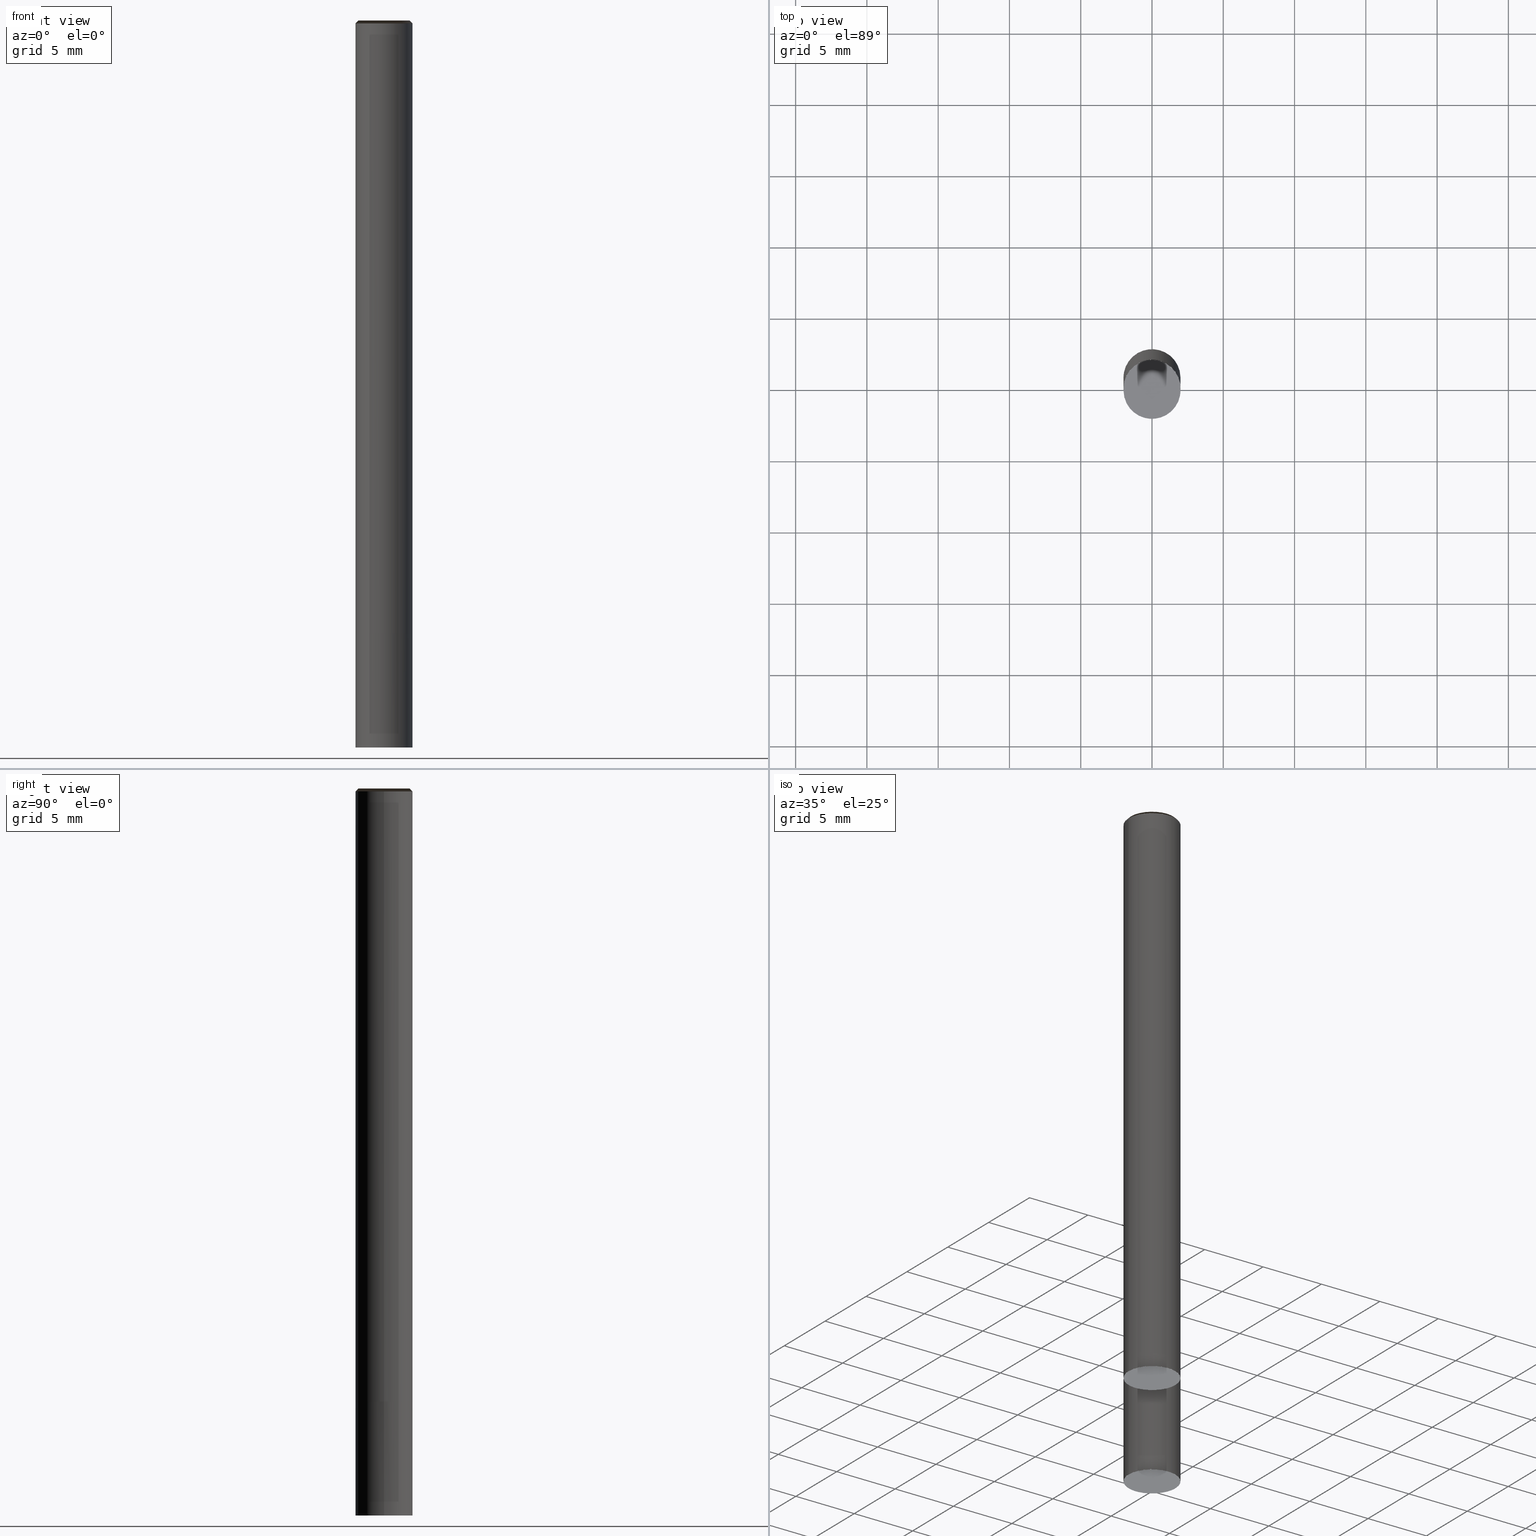
[diagram: canonical four-view strip — front | top / right | iso, engineering-drawing reading convention]
A machine part, canonical four-view strip (front | top / right | iso — engineering-drawing reading convention). The complete STEP part file that produces these views, byte-faithful:
ISO-10303-21;
HEADER;
/* Generated by ISBE GmbH (www.isbe.de) */
/* OPTION: using custom schema-name function */

FILE_DESCRIPTION(
/* description */ (''),
/* implementation_level */ '2;1');

FILE_NAME(
/*name*/ 'Drawing No  1070400',
/*time_stamp*/'2021-9-28T14:21:57',
/*author*/ ('ISBE GmbH'),
/*organization*/ ('ISBE GmbH'),
/*preprocessor_version*/ 'STEP IO v1.0',
/*originating_system*/ '',
/*authorisation*/ '');

FILE_SCHEMA (('AUTOMOTIVE_DESIGN'));
ENDSEC;

DATA;
#10=SHAPE_DEFINITION_REPRESENTATION(#11,#57);
#11=PRODUCT_DEFINITION_SHAPE('Document','',#13);
#12=PRODUCT_DEFINITION_CONTEXT('3D Mechanical Parts',#17,'design');
#13=PRODUCT_DEFINITION('A','First version',#14,#12);
#14=PRODUCT_DEFINITION_FORMATION_WITH_SPECIFIED_SOURCE('A','First version',#19,.MADE.);
#15=PRODUCT_RELATED_PRODUCT_CATEGORY('tool','tool',(#19));
#16=APPLICATION_PROTOCOL_DEFINITION('Draft International Standard', 'automotive_design',1999,#17);
#17=APPLICATION_CONTEXT('data for automotive mechanical design processes');
#18=PRODUCT_CONTEXT('3D Mechanical Parts',#17,'mechanical');
#19=PRODUCT('Document','Document','ISBE converted to STEP',(#18));
#20=(
LENGTH_UNIT()
NAMED_UNIT(*)
SI_UNIT(.MILLI.,.METRE.)
);
#21=(
NAMED_UNIT(*)
PLANE_ANGLE_UNIT()
SI_UNIT($,.RADIAN.)
);
#22=DIMENSIONAL_EXPONENTS(0.,0.,0.,0.,0.,0.,0.);
#23=PLANE_ANGLE_MEASURE_WITH_UNIT(PLANE_ANGLE_MEASURE(0.01745329252),#21);
#24=(
CONVERSION_BASED_UNIT('DEGREES',#23)
NAMED_UNIT(#22)
PLANE_ANGLE_UNIT()
);
#25=(
NAMED_UNIT(*)
SI_UNIT($,.STERADIAN.)
SOLID_ANGLE_UNIT()
);
#26=UNCERTAINTY_MEASURE_WITH_UNIT(LENGTH_MEASURE(0.001),#20, 'DISTANCE_ACCURACY_VALUE', 'Maximum model space distance between geometric entities at asserted connectivities');
#27=(
GEOMETRIC_REPRESENTATION_CONTEXT(3)
GLOBAL_UNCERTAINTY_ASSIGNED_CONTEXT((#26))
GLOBAL_UNIT_ASSIGNED_CONTEXT((#25,#24,#20))
REPRESENTATION_CONTEXT('ID1','3D')
);
#28=CARTESIAN_POINT('',(0.0,0.0,0.0));
#29=DIRECTION('',(1.0,0.0,0.0));
#30=DIRECTION('',(0.0,0.0,1.0));
#31=AXIS2_PLACEMENT_3D('',#28,#30,#29);
#32=CARTESIAN_POINT('',(0.0,0.0,0.0));
#33=DIRECTION('',(1.0,0.0,0.0));
#34=DIRECTION('',(0.0,0.0,1.0));
#35=AXIS2_PLACEMENT_3D('',#32,#34,#33);
#36=CARTESIAN_POINT('',(0.0,0.0,0.0));
#37=DIRECTION('',(1.0,0.0,0.0));
#38=DIRECTION('',(0.0,0.0,1.0));
#39=AXIS2_PLACEMENT_3D('',#36,#38,#37);
#40=CARTESIAN_POINT('',(0.0,0.0,0.0));
#41=DIRECTION('',(0.0,0.0,1.0));
#42=DIRECTION('',(1.0,0.0,0.0));
#43=AXIS2_PLACEMENT_3D('MCS',#40,#42,#41);
#44=CARTESIAN_POINT('',(0.0,0.0,43.0));
#45=DIRECTION('',(0.0,0.0,1.0));
#46=DIRECTION('',(1.0,0.0,0.0));
#47=AXIS2_PLACEMENT_3D('PCS',#44,#46,#45);
#48=CARTESIAN_POINT('',(0.0,0.0,-8.0));
#49=DIRECTION('',(0.0,0.0,1.0));
#50=DIRECTION('',(1.0,0.0,0.0));
#51=AXIS2_PLACEMENT_3D('CIP',#48,#50,#49);
#52=CARTESIAN_POINT('',(0.0,-2.0,-8.0));
#53=DIRECTION('',(0.0,0.0,1.0));
#54=DIRECTION('',(1.0,0.0,0.0));
#55=AXIS2_PLACEMENT_3D('CRP',#52,#54,#53);
#57=SHAPE_REPRESENTATION('Document',(#31,#35,#39,#43,#47,#51,#55),#27);
#58=DIRECTION('',(1.0,0.0,0.0));
#59=DIRECTION('',(0.0,0.0,1.0));
#60=CARTESIAN_POINT('',(-0.009999874999,-0.00005,-8.0));
#61=CARTESIAN_POINT('',(-0.009802013146,-0.039621875899,-8.0));
#62=CARTESIAN_POINT('',(-0.00959478581,-0.081066825096,-8.0));
#63=CARTESIAN_POINT('',(-0.009389675184,-0.12208843763,-8.0));
#64=CARTESIAN_POINT('',(-0.009185081157,-0.163006731356,-8.0));
#65=CARTESIAN_POINT('',(-0.008980692572,-0.203883937443,-8.0));
#66=CARTESIAN_POINT('',(-0.008776406463,-0.244740648651,-8.0));
#67=CARTESIAN_POINT('',(-0.008572178839,-0.285585662825,-8.0));
#68=CARTESIAN_POINT('',(-0.008367987743,-0.326423371581,-8.0));
#69=CARTESIAN_POINT('',(-0.008163820987,-0.367256212275,-8.0));
#70=CARTESIAN_POINT('',(-0.007959671265,-0.408085646377,-8.0));
#71=CARTESIAN_POINT('',(-0.007755533927,-0.448912603498,-8.0));
#72=CARTESIAN_POINT('',(-0.007551405877,-0.489737703183,-8.0));
#73=CARTESIAN_POINT('',(-0.00734728497,-0.530561374244,-8.0));
#74=CARTESIAN_POINT('',(-0.007143169676,-0.57138392292,-8.0));
#75=CARTESIAN_POINT('',(-0.00693905887,-0.612205573757,-8.0));
#76=CARTESIAN_POINT('',(-0.006734951712,-0.653026495142,-8.0));
#77=CARTESIAN_POINT('',(-0.006530847557,-0.693846815832,-8.0));
#78=CARTESIAN_POINT('',(-0.006326745905,-0.734666635963,-8.0));
#79=CARTESIAN_POINT('',(-0.006122646361,-0.775486034585,-8.0));
#80=CARTESIAN_POINT('',(-0.005918548608,-0.816305074934,-8.0));
#81=CARTESIAN_POINT('',(-0.00571445239,-0.857123808201,-8.0));
#82=CARTESIAN_POINT('',(-0.005510357499,-0.897942276265,-8.0));
#83=CARTESIAN_POINT('',(-0.00530626376,-0.938760513722,-8.0));
#84=CARTESIAN_POINT('',(-0.005102171031,-0.979578549402,-8.0));
#85=CARTESIAN_POINT('',(-0.004898079189,-1.02039640752,-8.0));
#86=CARTESIAN_POINT('',(-0.004693988132,-1.061214108565,-8.0));
#87=CARTESIAN_POINT('',(-0.004489897774,-1.102031669993,-8.0));
#88=CARTESIAN_POINT('',(-0.004285808039,-1.142849106763,-8.0));
#89=CARTESIAN_POINT('',(-0.004081718863,-1.183666431772,-8.0));
#90=CARTESIAN_POINT('',(-0.00387763019,-1.224483656196,-8.0));
#91=CARTESIAN_POINT('',(-0.003673541971,-1.265300789771,-8.0));
#92=CARTESIAN_POINT('',(-0.003469454163,-1.306117841014,-8.0));
#93=CARTESIAN_POINT('',(-0.00326536673,-1.346934817411,-8.0));
#94=CARTESIAN_POINT('',(-0.003061279638,-1.387751725565,-8.0));
#95=CARTESIAN_POINT('',(-0.002857192859,-1.428568571326,-8.0));
#96=CARTESIAN_POINT('',(-0.002653106365,-1.469385359894,-8.0));
#97=CARTESIAN_POINT('',(-0.002449020133,-1.510202095906,-8.0));
#98=CARTESIAN_POINT('',(-0.002244934144,-1.551018783513,-8.0));
#99=CARTESIAN_POINT('',(-0.002040848379,-1.591835426437,-8.0));
#100=CARTESIAN_POINT('',(-0.00183676282,-1.632652028029,-8.0));
#101=CARTESIAN_POINT('',(-0.001632677452,-1.673468591315,-8.0));
#102=CARTESIAN_POINT('',(-0.001428592262,-1.71428511903,-8.0));
#103=CARTESIAN_POINT('',(-0.001224507238,-1.755101613657,-8.0));
#104=CARTESIAN_POINT('',(-0.001020422368,-1.79591807745,-8.0));
#105=CARTESIAN_POINT('',(-0.000816337642,-1.836734512467,-8.0));
#106=CARTESIAN_POINT('',(-0.00061225305,-1.877550920583,-8.0));
#107=CARTESIAN_POINT('',(-0.000408168585,-1.918367303516,-8.0));
#108=CARTESIAN_POINT('',(-0.000204084237,-1.95918366284,-8.0));
#109=CARTESIAN_POINT('',(0.0,-2.0,-8.0));
#110=CARTESIAN_POINT('',(0.060964840708,-1.999070606106,-7.920792079208));
#111=CARTESIAN_POINT('',(0.121873021064,-1.996283288198,-7.841584158416));
#112=CARTESIAN_POINT('',(0.18266793338,-1.99164063679,-7.762376237624));
#113=CARTESIAN_POINT('',(0.243293075233,-1.985146966737,-7.683168316832));
#114=CARTESIAN_POINT('',(0.303692101988,-1.976808313214,-7.60396039604));
#115=CARTESIAN_POINT('',(0.363808879157,-1.966632426115,-7.524752475248));
#116=CARTESIAN_POINT('',(0.423587534576,-1.954628762848,-7.445544554455));
#117=CARTESIAN_POINT('',(0.482972510327,-1.940808479544,-7.366336633663));
#118=CARTESIAN_POINT('',(0.541908614375,-1.92518442069,-7.287128712871));
#119=CARTESIAN_POINT('',(0.600341071867,-1.90777110719,-7.207920792079));
#120=CARTESIAN_POINT('',(0.658215576032,-1.888584722873,-7.128712871287));
#121=CARTESIAN_POINT('',(0.71547833866,-1.867643099446,-7.049504950495));
#122=CARTESIAN_POINT('',(0.772076140088,-1.844965699927,-6.970297029703));
#123=CARTESIAN_POINT('',(0.827956378666,-1.820573600552,-6.891089108911));
#124=CARTESIAN_POINT('',(0.883067119642,-1.794489471189,-6.811881188119));
#125=CARTESIAN_POINT('',(0.937357143429,-1.766737554269,-6.732673267327));
#126=CARTESIAN_POINT('',(0.99077599321,-1.737343642253,-6.653465346535));
#127=CARTESIAN_POINT('',(1.043274021833,-1.706335053666,-6.574257425743));
#128=CARTESIAN_POINT('',(1.094802437951,-1.673740607698,-6.49504950495));
#129=CARTESIAN_POINT('',(1.145313351367,-1.63959059743,-6.415841584158));
#130=CARTESIAN_POINT('',(1.194759817548,-1.603916761672,-6.336633663366));
#131=CARTESIAN_POINT('',(1.243095881251,-1.566752255469,-6.257425742574));
#132=CARTESIAN_POINT('',(1.290276619231,-1.528131619287,-6.178217821782));
#133=CARTESIAN_POINT('',(1.336258182001,-1.488090746909,-6.09900990099));
#134=CARTESIAN_POINT('',(1.380997834575,-1.446666852077,-6.019801980198));
#135=CARTESIAN_POINT('',(1.424453996194,-1.403898433907,-5.940594059406));
#136=CARTESIAN_POINT('',(1.466586278968,-1.359825241104,-5.861386138614));
#137=CARTESIAN_POINT('',(1.507355525408,-1.314488235026,-5.782178217822));
#138=CARTESIAN_POINT('',(1.546723844828,-1.267929551608,-5.70297029703));
#139=CARTESIAN_POINT('',(1.584654648551,-1.220192462207,-5.623762376238));
#140=CARTESIAN_POINT('',(1.621112683919,-1.171321333382,-5.544554455446));
#141=CARTESIAN_POINT('',(1.656064067058,-1.121361585663,-5.465346534653));
#142=CARTESIAN_POINT('',(1.689476314365,-1.070359651333,-5.386138613861));
#143=CARTESIAN_POINT('',(1.721318372701,-1.018362931278,-5.306930693069));
#144=CARTESIAN_POINT('',(1.751560648252,-0.965419750934,-5.227722772277));
#145=CARTESIAN_POINT('',(1.780175034033,-0.911579315368,-5.148514851485));
#146=CARTESIAN_POINT('',(1.807134936006,-0.856891663553,-5.069306930693));
#147=CARTESIAN_POINT('',(1.832415297805,-0.801407621857,-4.990099009901));
#148=CARTESIAN_POINT('',(1.855992624014,-0.745178756812,-4.910891089109));
#149=CARTESIAN_POINT('',(1.877845002012,-0.68825732718,-4.831683168317));
#150=CARTESIAN_POINT('',(1.897952122332,-0.630696235391,-4.752475247525));
#151=CARTESIAN_POINT('',(1.916295297538,-0.572548978372,-4.673267326733));
#152=CARTESIAN_POINT('',(1.932857479596,-0.513869597828,-4.594059405941));
#153=CARTESIAN_POINT('',(1.947623275714,-0.454712630018,-4.514851485149));
#154=CARTESIAN_POINT('',(1.960578962652,-0.395133055066,-4.435643564356));
#155=CARTESIAN_POINT('',(1.971712499474,-0.335186245865,-4.356435643564));
#156=CARTESIAN_POINT('',(1.981013538739,-0.274927916614,-4.277227722772));
#157=CARTESIAN_POINT('',(1.988473436117,-0.214414071036,-4.19801980198));
#158=CARTESIAN_POINT('',(1.994085258425,-0.15370095033,-4.118811881188));
#159=CARTESIAN_POINT('',(1.99784379007,-0.092844980899,-4.039603960396));
#160=CARTESIAN_POINT('',(1.999745537896,-0.03190272191,-3.960396039604));
#161=CARTESIAN_POINT('',(1.99978873443,0.029069187274,-3.881188118812));
#162=CARTESIAN_POINT('',(1.997973339524,0.090014079733,-3.80198019802));
#163=CARTESIAN_POINT('',(1.994301040397,0.150875313656,-3.722772277228));
#164=CARTESIAN_POINT('',(1.98877525006,0.211596324984,-3.643564356436));
#165=CARTESIAN_POINT('',(1.98140110415,0.272120679979,-3.564356435644));
#166=CARTESIAN_POINT('',(1.972185456152,0.332392127676,-3.485148514851));
#167=CARTESIAN_POINT('',(1.961136871034,0.39235465216,-3.405940594059));
#168=CARTESIAN_POINT('',(1.948265617283,0.451952524625,-3.326732673267));
#169=CARTESIAN_POINT('',(1.933583657363,0.511130355173,-3.247524752475));
#170=CARTESIAN_POINT('',(1.917104636599,0.569833144291,-3.168316831683));
#171=CARTESIAN_POINT('',(1.898843870491,0.628006333963,-3.089108910891));
#172=CARTESIAN_POINT('',(1.878818330485,0.685595858384,-3.009900990099));
#173=CARTESIAN_POINT('',(1.857046628195,0.7425481942,-2.930693069307));
#174=CARTESIAN_POINT('',(1.833548998108,0.798810410258,-2.851485148515));
#175=CARTESIAN_POINT('',(1.808347278778,0.854330216799,-2.772277227723));
#176=CARTESIAN_POINT('',(1.781464892529,0.909056014053,-2.693069306931));
#177=CARTESIAN_POINT('',(1.752926823687,0.962936940198,-2.613861386139));
#178=CARTESIAN_POINT('',(1.722759595359,1.015922918631,-2.534653465347));
#179=CARTESIAN_POINT('',(1.690991244782,1.067964704506,-2.455445544554));
#180=CARTESIAN_POINT('',(1.657651297267,1.119013930507,-2.376237623762));
#181=CARTESIAN_POINT('',(1.622770738759,1.169023151793,-2.29702970297));
#182=CARTESIAN_POINT('',(1.586381987035,1.2179458901,-2.217821782178));
#183=CARTESIAN_POINT('',(1.548518861579,1.265736676934,-2.138613861386));
#184=CARTESIAN_POINT('',(1.509216552148,1.312351095829,-2.059405940594));
#185=CARTESIAN_POINT('',(1.468511586069,1.357745823629,-1.980198019802));
#186=CARTESIAN_POINT('',(1.426441794289,1.401878670751,-1.90099009901));
#187=CARTESIAN_POINT('',(1.383046276215,1.444708620396,-1.821782178218));
#188=CARTESIAN_POINT('',(1.338365363378,1.486195866671,-1.742574257426));
#189=CARTESIAN_POINT('',(1.292440581943,1.526301851583,-1.663366336634));
#190=CARTESIAN_POINT('',(1.245314614124,1.564989300874,-1.584158415842));
#191=CARTESIAN_POINT('',(1.197031258507,1.602222258664,-1.50495049505));
#192=CARTESIAN_POINT('',(1.147635389347,1.63796612087,-1.425742574257));
#193=CARTESIAN_POINT('',(1.097172914863,1.672187667366,-1.346534653465));
#194=CARTESIAN_POINT('',(1.045690734573,1.704855092854,-1.267326732673));
#195=CARTESIAN_POINT('',(0.993236695698,1.735938036428,-1.188118811881));
#196=CARTESIAN_POINT('',(0.939859548704,1.765407609792,-1.108910891089));
#197=CARTESIAN_POINT('',(0.885608901983,1.793236424102,-1.029702970297));
#198=CARTESIAN_POINT('',(0.830535175757,1.81939861543,-0.950495049505));
#199=CARTESIAN_POINT('',(0.77468955521,1.843869868795,-0.871287128713));
#200=CARTESIAN_POINT('',(0.718123942921,1.866627440762,-0.792079207921));
#201=CARTESIAN_POINT('',(0.660890910624,1.887650180583,-0.712871287129));
#202=CARTESIAN_POINT('',(0.60304365035,1.906918549853,-0.633663366337));
#203=CARTESIAN_POINT('',(0.54463592499,1.924414640666,-0.554455445545));
#204=CARTESIAN_POINT('',(0.485722018326,1.940122192263,-0.475247524752));
#205=CARTESIAN_POINT('',(0.426356684585,1.954026606142,-0.39603960396));
#206=CARTESIAN_POINT('',(0.366595097545,1.966114959624,-0.316831683168));
#207=CARTESIAN_POINT('',(0.306492799259,1.976376017868,-0.237623762376));
#208=CARTESIAN_POINT('',(0.246105648437,1.984800244309,-0.158415841584));
#209=CARTESIAN_POINT('',(0.185489768528,1.991379809522,-0.079207920792));
#210=CARTESIAN_POINT('',(0.124701495561,1.9961085985,0.0));
#211=CARTESIAN_POINT('',(0.00504323877,-0.008635145784,-8.0));
#212=CARTESIAN_POINT('',(0.039214557647,0.011322145556,-8.0));
#213=CARTESIAN_POINT('',(0.075003322842,0.032224084292,-8.0));
#214=CARTESIAN_POINT('',(0.110426526088,0.052912521573,-8.0));
#215=CARTESIAN_POINT('',(0.145760510921,0.07354885206,-8.0));
#216=CARTESIAN_POINT('',(0.181059015535,0.09416446081,-8.0));
#217=CARTESIAN_POINT('',(0.216339822301,0.114769733375,-8.0));
#218=CARTESIAN_POINT('',(0.251610528382,0.135369106772,-8.0));
#219=CARTESIAN_POINT('',(0.286874926049,0.155964795827,-8.0));
#220=CARTESIAN_POINT('',(0.322135120021,0.176558029771,-8.0));
#221=CARTESIAN_POINT('',(0.357392372314,0.197149545667,-8.0));
#222=CARTESIAN_POINT('',(0.392647485672,0.217739812348,-8.0));
#223=CARTESIAN_POINT('',(0.427900995086,0.238329142267,-8.0));
#224=CARTESIAN_POINT('',(0.463153270847,0.258917751689,-8.0));
#225=CARTESIAN_POINT('',(0.498404577401,0.279505795058,-8.0));
#226=CARTESIAN_POINT('',(0.533655108647,0.300093385619,-8.0));
#227=CARTESIAN_POINT('',(0.568905009993,0.320680608295,-8.0));
#228=CARTESIAN_POINT('',(0.604154392624,0.341267528023,-8.0));
#229=CARTESIAN_POINT('',(0.639403343009,0.361854195304,-8.0));
#230=CARTESIAN_POINT('',(0.674651929411,0.382440650006,-8.0));
#231=CARTESIAN_POINT('',(0.709900206435,0.403026924019,-8.0));
#232=CARTESIAN_POINT('',(0.745148218286,0.423613043162,-8.0));
#233=CARTESIAN_POINT('',(0.780396001127,0.444199028555,-8.0));
#234=CARTESIAN_POINT('',(0.815643584833,0.464784897646,-8.0));
#235=CARTESIAN_POINT('',(0.850890994299,0.485370664974,-8.0));
#236=CARTESIAN_POINT('',(0.886138250437,0.505956342753,-8.0));
#237=CARTESIAN_POINT('',(0.921385370938,0.526541941315,-8.0));
#238=CARTESIAN_POINT('',(0.956632370876,0.547127469464,-8.0));
#239=CARTESIAN_POINT('',(0.991879263169,0.567712934744,-8.0));
#240=CARTESIAN_POINT('',(1.027126058953,0.58829834366,-8.0));
#241=CARTESIAN_POINT('',(1.06237276788,0.608883701847,-8.0));
#242=CARTESIAN_POINT('',(1.097619398356,0.629469014217,-8.0));
#243=CARTESIAN_POINT('',(1.132865957736,0.650054285064,-8.0));
#244=CARTESIAN_POINT('',(1.168112452485,0.670639518164,-8.0));
#245=CARTESIAN_POINT('',(1.203358888304,0.691224716847,-8.0));
#246=CARTESIAN_POINT('',(1.238605270245,0.711809884064,-8.0));
#247=CARTESIAN_POINT('',(1.273851602799,0.732395022436,-8.0));
#248=CARTESIAN_POINT('',(1.30909788997,0.752980134303,-8.0));
#249=CARTESIAN_POINT('',(1.344344135341,0.773565221758,-8.0));
#250=CARTESIAN_POINT('',(1.379590342127,0.794150286677,-8.0));
#251=CARTESIAN_POINT('',(1.414836513223,0.814735330752,-8.0));
#252=CARTESIAN_POINT('',(1.45008265124,0.835320355508,-8.0));
#253=CARTESIAN_POINT('',(1.485328758541,0.855905362324,-8.0));
#254=CARTESIAN_POINT('',(1.520574837269,0.876490352453,-8.0));
#255=CARTESIAN_POINT('',(1.555820889372,0.897075327032,-8.0));
#256=CARTESIAN_POINT('',(1.591066916625,0.917660287097,-8.0));
#257=CARTESIAN_POINT('',(1.626312920649,0.938245233596,-8.0));
#258=CARTESIAN_POINT('',(1.661558902927,0.958830167395,-8.0));
#259=CARTESIAN_POINT('',(1.696804864817,0.979415089286,-8.0));
#260=CARTESIAN_POINT('',(1.732050807569,1.0,-8.0));
#261=CARTESIAN_POINT('',(1.700763508493,1.052332403843,-7.920792079208));
#262=CARTESIAN_POINT('',(1.667895530197,1.103686776376,-7.841584158416));
#263=CARTESIAN_POINT('',(1.63347741998,1.154015389159,-7.762376237624));
#264=CARTESIAN_POINT('',(1.597541165823,1.203271467085,-7.683168316832));
#265=CARTESIAN_POINT('',(1.560120166661,1.251409231857,-7.60396039604));
#266=CARTESIAN_POINT('',(1.521249201343,1.29838394453,-7.524752475248));
#267=CARTESIAN_POINT('',(1.480964396306,1.344151947093,-7.445544554455));
#268=CARTESIAN_POINT('',(1.439303192002,1.388670703044,-7.366336633663));
#269=CARTESIAN_POINT('',(1.396304308099,1.431898836924,-7.287128712871));
#270=CARTESIAN_POINT('',(1.352007707499,1.473796172767,-7.207920792079));
#271=CARTESIAN_POINT('',(1.306454559191,1.514323771447,-7.128712871287));
#272=CARTESIAN_POINT('',(1.259687199993,1.55344396686,-7.049504950495));
#273=CARTESIAN_POINT('',(1.211749095204,1.591120400936,-6.970297029703));
#274=CARTESIAN_POINT('',(1.162684798204,1.627318057426,-6.891089108911));
#275=CARTESIAN_POINT('',(1.112539909052,1.662003294451,-6.811881188119));
#276=CARTESIAN_POINT('',(1.061361032102,1.695143875762,-6.732673267327));
#277=CARTESIAN_POINT('',(1.00919573269,1.726709000706,-6.653465346535));
#278=CARTESIAN_POINT('',(0.956092492926,1.756669332849,-6.574257425743));
#279=CARTESIAN_POINT('',(0.902100666637,1.784997027239,-6.49504950495));
#280=CARTESIAN_POINT('',(0.847270433497,1.811665756292,-6.415841584158));
#281=CARTESIAN_POINT('',(0.791652752389,1.836650734254,-6.336633663366));
#282=CARTESIAN_POINT('',(0.735299314047,1.859928740237,-6.257425742574));
#283=CARTESIAN_POINT('',(0.678262493013,1.881478139807,-6.178217821782));
#284=CARTESIAN_POINT('',(0.620595298959,1.901278905082,-6.09900990099));
#285=CARTESIAN_POINT('',(0.562351327424,1.919312633352,-6.019801980198));
#286=CARTESIAN_POINT('',(0.503584709999,1.93556256418,-5.940594059406));
#287=CARTESIAN_POINT('',(0.444350064019,1.95001359498,-5.861386138614));
#288=CARTESIAN_POINT('',(0.384702441804,1.962652295051,-5.782178217822));
#289=CARTESIAN_POINT('',(0.324697279487,1.973466918064,-5.70297029703));
#290=CARTESIAN_POINT('',(0.264390345502,1.982447412973,-5.623762376238));
#291=CARTESIAN_POINT('',(0.203837688744,1.989585433362,-5.544554455446));
#292=CARTESIAN_POINT('',(0.143095586483,1.994874345198,-5.465346534653));
#293=CARTESIAN_POINT('',(0.082220492058,1.998309232998,-5.386138613861));
#294=CARTESIAN_POINT('',(0.021268982409,1.999886904399,-5.306930693069));
#295=CARTESIAN_POINT('',(-0.039702294502,1.999605893123,-5.227722772277));
#296=CARTESIAN_POINT('',(-0.100636672343,1.997466460339,-5.148514851485));
#297=CARTESIAN_POINT('',(-0.161477519075,1.993470594424,-5.069306930693));
#298=CARTESIAN_POINT('',(-0.222168289587,1.987622009111,-4.990099009901));
#299=CARTESIAN_POINT('',(-0.282652578248,1.979926140039,-4.910891089109));
#300=CARTESIAN_POINT('',(-0.342874171328,1.970390139702,-4.831683168317));
#301=CARTESIAN_POINT('',(-0.402777099246,1.959022870801,-4.752475247525));
#302=CARTESIAN_POINT('',(-0.462305688588,1.945834898006,-4.673267326733));
#303=CARTESIAN_POINT('',(-0.521404613846,1.930838478138,-4.594059405941));
#304=CARTESIAN_POINT('',(-0.58001894884,1.914047548779,-4.514851485149));
#305=CARTESIAN_POINT('',(-0.638094217764,1.895477715315,-4.435643564356));
#306=CARTESIAN_POINT('',(-0.695576445819,1.875146236436,-4.356435643564));
#307=CARTESIAN_POINT('',(-0.752412209372,1.853072008096,-4.277227722772));
#308=CARTESIAN_POINT('',(-0.808548685612,1.829275545946,-4.19801980198));
#309=CARTESIAN_POINT('',(-0.863933701641,1.803778966273,-4.118811881188));
#310=CARTESIAN_POINT('',(-0.918515782963,1.776605965443,-4.039603960396));
#311=CARTESIAN_POINT('',(-0.972244201324,1.747781797877,-3.960396039604));
#312=CARTESIAN_POINT('',(-1.025069021862,1.717333252581,-3.881188118812));
#313=CARTESIAN_POINT('',(-1.07694114951,1.685288628245,-3.80198019802));
#314=CARTESIAN_POINT('',(-1.127812374629,1.651677706949,-3.722772277228));
#315=CARTESIAN_POINT('',(-1.177635417814,1.616531726478,-3.643564356436));
#316=CARTESIAN_POINT('',(-1.226363973832,1.579883351291,-3.564356435644));
#317=CARTESIAN_POINT('',(-1.273952754662,1.541766642164,-3.485148514851));
#318=CARTESIAN_POINT('',(-1.32035753158,1.502217024534,-3.405940594059));
#319=CARTESIAN_POINT('',(-1.365535176271,1.461271255574,-3.326732673267));
#320=CARTESIAN_POINT('',(-1.409443700907,1.418967390032,-3.247524752475));
#321=CARTESIAN_POINT('',(-1.452042297173,1.375344744862,-3.168316831683));
#322=CARTESIAN_POINT('',(-1.493291374195,1.330443862684,-3.089108910891));
#323=CARTESIAN_POINT('',(-1.533152595332,1.284306474104,-3.009900990099));
#324=CARTESIAN_POINT('',(-1.571588913809,1.236975458929,-2.930693069307));
#325=CARTESIAN_POINT('',(-1.608564607145,1.188494806316,-2.851485148515));
#326=CARTESIAN_POINT('',(-1.644045310358,1.138909573887,-2.772277227723));
#327=CARTESIAN_POINT('',(-1.677998047897,1.088265845854,-2.693069306931));
#328=CARTESIAN_POINT('',(-1.710391264297,1.036610690189,-2.613861386139));
#329=CARTESIAN_POINT('',(-1.7411948535,0.983992114879,-2.534653465347));
#330=CARTESIAN_POINT('',(-1.770380186839,0.930459023305,-2.455445544554));
#331=CARTESIAN_POINT('',(-1.797920139641,0.876061168796,-2.376237623762));
#332=CARTESIAN_POINT('',(-1.823789116444,0.820849108387,-2.29702970297));
#333=CARTESIAN_POINT('',(-1.847963074779,0.764874155828,-2.217821782178));
#334=CARTESIAN_POINT('',(-1.870419547516,0.708188333899,-2.138613861386));
#335=CARTESIAN_POINT('',(-1.891137663746,0.650844326058,-2.059405940594));
#336=CARTESIAN_POINT('',(-1.910098168179,0.592895427473,-1.980198019802));
#337=CARTESIAN_POINT('',(-1.927283439038,0.534395495499,-1.90099009901));
#338=CARTESIAN_POINT('',(-1.942677504437,0.475398899614,-1.821782178218));
#339=CARTESIAN_POINT('',(-1.956266057226,0.415960470895,-1.742574257426));
#340=CARTESIAN_POINT('',(-1.968036468286,0.356135451054,-1.663366336634));
#341=CARTESIAN_POINT('',(-1.977977798269,0.295979441099,-1.584158415842));
#342=CARTESIAN_POINT('',(-1.986080807765,0.235548349659,-1.50495049505));
#343=CARTESIAN_POINT('',(-1.992337965885,0.174898341021,-1.425742574257));
#344=CARTESIAN_POINT('',(-1.996743457265,0.114085782933,-1.346534653465));
#345=CARTESIAN_POINT('',(-1.999293187469,0.053167194215,-1.267326732673));
#346=CARTESIAN_POINT('',(-1.999984786792,-0.007800807769,-1.188118811881));
#347=CARTESIAN_POINT('',(-1.998817612466,-0.068761559729,-1.108910891089));
#348=CARTESIAN_POINT('',(-1.995792749256,-0.129658405116,-1.029702970297));
#349=CARTESIAN_POINT('',(-1.990913008452,-0.190434746773,-0.950495049505));
#350=CARTESIAN_POINT('',(-1.984182925254,-0.251034099539,-0.871287128713));
#351=CARTESIAN_POINT('',(-1.975608754561,-0.311400142746,-0.792079207921));
#352=CARTESIAN_POINT('',(-1.965198465155,-0.371476772561,-0.712871287129));
#353=CARTESIAN_POINT('',(-1.952961732295,-0.431208154133,-0.633663366337));
#354=CARTESIAN_POINT('',(-1.938909928727,-0.490538773478,-0.554455445545));
#355=CARTESIAN_POINT('',(-1.923056114109,-0.549413489084,-0.475247524752));
#356=CARTESIAN_POINT('',(-1.905415022882,-0.607777583147,-0.39603960396));
#357=CARTESIAN_POINT('',(-1.886003050567,-0.665576812435,-0.316831683168));
#358=CARTESIAN_POINT('',(-1.864838238533,-0.722757458699,-0.237623762376));
#359=CARTESIAN_POINT('',(-1.841940257227,-0.779266378593,-0.158415841584));
#360=CARTESIAN_POINT('',(-1.817330387894,-0.835051053073,-0.079207920792));
#361=CARTESIAN_POINT('',(-1.791031502794,-0.890059636204,0.0));
#362=CARTESIAN_POINT('',(0.004956636229,0.008685145784,-8.0));
#363=CARTESIAN_POINT('',(-0.029412544501,0.028299730342,-8.0));
#364=CARTESIAN_POINT('',(-0.065408537032,0.048842740803,-8.0));
#365=CARTESIAN_POINT('',(-0.101036850905,0.069175916057,-8.0));
#366=CARTESIAN_POINT('',(-0.136575429763,0.089457879296,-8.0));
#367=CARTESIAN_POINT('',(-0.172078322963,0.109719476633,-8.0));
#368=CARTESIAN_POINT('',(-0.207563415839,0.129970915276,-8.0));
#369=CARTESIAN_POINT('',(-0.243038349544,0.150216556053,-8.0));
#370=CARTESIAN_POINT('',(-0.278506938307,0.170458575754,-8.0));
#371=CARTESIAN_POINT('',(-0.313971299034,0.190698182504,-8.0));
#372=CARTESIAN_POINT('',(-0.34943270105,0.210936100709,-8.0));
#373=CARTESIAN_POINT('',(-0.384891951745,0.23117279115,-8.0));
#374=CARTESIAN_POINT('',(-0.420349589209,0.251408560915,-8.0));
#375=CARTESIAN_POINT('',(-0.455805985876,0.271643622555,-8.0));
#376=CARTESIAN_POINT('',(-0.491261407725,0.291878127863,-8.0));
#377=CARTESIAN_POINT('',(-0.526716049777,0.312112188138,-8.0));
#378=CARTESIAN_POINT('',(-0.562170058281,0.332345886847,-8.0));
#379=CARTESIAN_POINT('',(-0.597623545067,0.352579287809,-8.0));
#380=CARTESIAN_POINT('',(-0.633076597104,0.372812440659,-8.0));
#381=CARTESIAN_POINT('',(-0.66852928305,0.393045384579,-8.0));
#382=CARTESIAN_POINT('',(-0.703981657828,0.413278150915,-8.0));
#383=CARTESIAN_POINT('',(-0.739433765895,0.433510765039,-8.0));
#384=CARTESIAN_POINT('',(-0.774885643628,0.45374324771,-8.0));
#385=CARTESIAN_POINT('',(-0.810337321073,0.473975616077,-8.0));
#386=CARTESIAN_POINT('',(-0.845788823269,0.494207884428,-8.0));
#387=CARTESIAN_POINT('',(-0.881240171248,0.514440064767,-8.0));
#388=CARTESIAN_POINT('',(-0.916691382806,0.53467216725,-8.0));
#389=CARTESIAN_POINT('',(-0.952142473102,0.554904200529,-8.0));
#390=CARTESIAN_POINT('',(-0.98759345513,0.575136172019,-8.0));
#391=CARTESIAN_POINT('',(-1.02304434009,0.595368088112,-8.0));
#392=CARTESIAN_POINT('',(-1.05849513769,0.615599954349,-8.0));
#393=CARTESIAN_POINT('',(-1.093945856385,0.635831775554,-8.0));
#394=CARTESIAN_POINT('',(-1.129396503573,0.65606355595,-8.0));
#395=CARTESIAN_POINT('',(-1.164847085754,0.676295299246,-8.0));
#396=CARTESIAN_POINT('',(-1.200297608665,0.696527008717,-8.0));
#397=CARTESIAN_POINT('',(-1.235748077387,0.716758687262,-8.0));
#398=CARTESIAN_POINT('',(-1.271198496435,0.736990337458,-8.0));
#399=CARTESIAN_POINT('',(-1.306648869837,0.757221961603,-8.0));
#400=CARTESIAN_POINT('',(-1.342099201197,0.777453561755,-8.0));
#401=CARTESIAN_POINT('',(-1.377549493749,0.797685139759,-8.0));
#402=CARTESIAN_POINT('',(-1.412999750404,0.817916697277,-8.0));
#403=CARTESIAN_POINT('',(-1.448449973788,0.838148235807,-8.0));
#404=CARTESIAN_POINT('',(-1.483900166279,0.858379756706,-8.0));
#405=CARTESIAN_POINT('',(-1.519350330031,0.878611261204,-8.0));
#406=CARTESIAN_POINT('',(-1.554800467003,0.898842750418,-8.0));
#407=CARTESIAN_POINT('',(-1.590250578983,0.919074225369,-8.0));
#408=CARTESIAN_POINT('',(-1.625700667599,0.939305686987,-8.0));
#409=CARTESIAN_POINT('',(-1.661150734342,0.959537136121,-8.0));
#410=CARTESIAN_POINT('',(-1.69660078058,0.979768573554,-8.0));
#411=CARTESIAN_POINT('',(-1.732050807569,1.0,-8.0));
#412=CARTESIAN_POINT('',(-1.7617283492,0.946738202263,-7.920792079208));
#413=CARTESIAN_POINT('',(-1.789768551262,0.892596511821,-7.841584158416));
#414=CARTESIAN_POINT('',(-1.81614535336,0.837625247632,-7.762376237624));
#415=CARTESIAN_POINT('',(-1.840834241056,0.781875499652,-7.683168316832));
#416=CARTESIAN_POINT('',(-1.863812268649,0.725399081357,-7.60396039604));
#417=CARTESIAN_POINT('',(-1.8850580805,0.668248481585,-7.524752475248));
#418=CARTESIAN_POINT('',(-1.904551930882,0.610476815754,-7.445544554455));
#419=CARTESIAN_POINT('',(-1.922275702328,0.552137776499,-7.366336633663));
#420=CARTESIAN_POINT('',(-1.938212922475,0.493285583766,-7.287128712871));
#421=CARTESIAN_POINT('',(-1.952348779366,0.433974934423,-7.207920792079));
#422=CARTESIAN_POINT('',(-1.964670135223,0.374260951426,-7.128712871287));
#423=CARTESIAN_POINT('',(-1.975165538653,0.314199132586,-7.049504950495));
#424=CARTESIAN_POINT('',(-1.983825235292,0.253845298991,-6.970297029703));
#425=CARTESIAN_POINT('',(-1.99064117687,0.193255543125,-6.891089108911));
#426=CARTESIAN_POINT('',(-1.995607028694,0.132486176738,-6.811881188119));
#427=CARTESIAN_POINT('',(-1.998718175531,0.071593678506,-6.732673267327));
#428=CARTESIAN_POINT('',(-1.9999717259,0.010634641547,-6.653465346535));
#429=CARTESIAN_POINT('',(-1.999366514759,-0.050334279183,-6.574257425743));
#430=CARTESIAN_POINT('',(-1.996903104587,-0.111256419541,-6.49504950495));
#431=CARTESIAN_POINT('',(-1.992583784864,-0.172075158863,-6.415841584158));
#432=CARTESIAN_POINT('',(-1.986412569938,-0.232733972582,-6.336633663366));
#433=CARTESIAN_POINT('',(-1.978395195298,-0.293176484768,-6.257425742574));
#434=CARTESIAN_POINT('',(-1.968539112245,-0.35334652052,-6.178217821782));
#435=CARTESIAN_POINT('',(-1.95685348096,-0.413188158173,-6.09900990099));
#436=CARTESIAN_POINT('',(-1.943349161999,-0.472645781275,-6.019801980198));
#437=CARTESIAN_POINT('',(-1.928038706194,-0.531664130273,-5.940594059406));
#438=CARTESIAN_POINT('',(-1.910936342987,-0.590188353876,-5.861386138614));
#439=CARTESIAN_POINT('',(-1.892057967212,-0.648164060026,-5.782178217822));
#440=CARTESIAN_POINT('',(-1.871421124315,-0.705537366456,-5.70297029703));
#441=CARTESIAN_POINT('',(-1.849044994053,-0.762254950766,-5.623762376238));
#442=CARTESIAN_POINT('',(-1.824950372663,-0.81826409998,-5.544554455446));
#443=CARTESIAN_POINT('',(-1.799159653541,-0.873512759535,-5.465346534653));
#444=CARTESIAN_POINT('',(-1.771696806422,-0.927949581665,-5.386138613861));
#445=CARTESIAN_POINT('',(-1.74258735511,-0.981523973121,-5.306930693069));
#446=CARTESIAN_POINT('',(-1.71185835375,-1.034186142189,-5.227722772277));
#447=CARTESIAN_POINT('',(-1.67953836169,-1.085887144971,-5.148514851485));
#448=CARTESIAN_POINT('',(-1.645657416931,-1.136578930871,-5.069306930693));
#449=CARTESIAN_POINT('',(-1.610247008217,-1.186214387253,-4.990099009901));
#450=CARTESIAN_POINT('',(-1.573340045767,-1.234747383227,-4.910891089109));
#451=CARTESIAN_POINT('',(-1.534970830685,-1.282132812522,-4.831683168317));
#452=CARTESIAN_POINT('',(-1.495175023086,-1.328326635411,-4.752475247525));
#453=CARTESIAN_POINT('',(-1.45398960895,-1.373285919635,-4.673267326733));
#454=CARTESIAN_POINT('',(-1.411452865749,-1.416968880311,-4.594059405941));
#455=CARTESIAN_POINT('',(-1.367604326874,-1.459334918761,-4.514851485149));
#456=CARTESIAN_POINT('',(-1.322484744888,-1.500344660249,-4.435643564356));
#457=CARTESIAN_POINT('',(-1.276136053655,-1.539959990572,-4.356435643564));
#458=CARTESIAN_POINT('',(-1.228601329367,-1.578144091482,-4.277227722772));
#459=CARTESIAN_POINT('',(-1.179924750505,-1.614861474909,-4.19801980198));
#460=CARTESIAN_POINT('',(-1.130151556784,-1.650078015943,-4.118811881188));
#461=CARTESIAN_POINT('',(-1.079328007108,-1.683760984544,-4.039603960396));
#462=CARTESIAN_POINT('',(-1.027501336572,-1.715879075968,-3.960396039604));
#463=CARTESIAN_POINT('',(-0.974719712568,-1.746402439855,-3.881188118812));
#464=CARTESIAN_POINT('',(-0.921032190015,-1.775302707979,-3.80198019802));
#465=CARTESIAN_POINT('',(-0.866488665768,-1.802553020606,-3.722772277228));
#466=CARTESIAN_POINT('',(-0.811139832247,-1.828128051462,-3.643564356436));
#467=CARTESIAN_POINT('',(-0.755037130318,-1.85200403127,-3.564356435644));
#468=CARTESIAN_POINT('',(-0.69823270149,-1.87415876984,-3.485148514851));
#469=CARTESIAN_POINT('',(-0.640779339454,-1.894571676693,-3.405940594059));
#470=CARTESIAN_POINT('',(-0.582730441012,-1.913223780199,-3.326732673267));
#471=CARTESIAN_POINT('',(-0.524139956456,-1.930097745205,-3.247524752475));
#472=CARTESIAN_POINT('',(-0.465062339425,-1.945177889153,-3.168316831683));
#473=CARTESIAN_POINT('',(-0.405552496296,-1.958450196647,-3.089108910891));
#474=CARTESIAN_POINT('',(-0.345665735153,-1.969902332488,-3.009900990099));
#475=CARTESIAN_POINT('',(-0.285457714386,-1.979523653129,-2.930693069307));
#476=CARTESIAN_POINT('',(-0.224984390963,-1.987305216574,-2.851485148515));
#477=CARTESIAN_POINT('',(-0.164301968421,-1.993239790686,-2.772277227723));
#478=CARTESIAN_POINT('',(-0.103466844632,-1.997321859907,-2.693069306931));
#479=CARTESIAN_POINT('',(-0.04253555939,-1.999547630387,-2.613861386139));
#480=CARTESIAN_POINT('',(0.018435258142,-1.999915033509,-2.534653465347));
#481=CARTESIAN_POINT('',(0.079388942057,-1.998423727811,-2.455445544554));
#482=CARTESIAN_POINT('',(0.140268842374,-1.995075099303,-2.376237623762));
#483=CARTESIAN_POINT('',(0.201018377685,-1.98987226018,-2.29702970297));
#484=CARTESIAN_POINT('',(0.261581087744,-1.982820045928,-2.217821782178));
#485=CARTESIAN_POINT('',(0.321900685937,-1.973925010833,-2.138613861386));
#486=CARTESIAN_POINT('',(0.381921111598,-1.963195421886,-2.059405940594));
#487=CARTESIAN_POINT('',(0.44158658211,-1.950641251102,-1.980198019802));
#488=CARTESIAN_POINT('',(0.500841644749,-1.936274166249,-1.90099009901));
#489=CARTESIAN_POINT('',(0.559631228222,-1.92010752001,-1.821782178218));
#490=CARTESIAN_POINT('',(0.617900693848,-1.902156337566,-1.742574257426));
#491=CARTESIAN_POINT('',(0.675595886342,-1.882437302636,-1.663366336634));
#492=CARTESIAN_POINT('',(0.732663184145,-1.860968741972,-1.584158415842));
#493=CARTESIAN_POINT('',(0.789049549258,-1.837770608323,-1.50495049505));
#494=CARTESIAN_POINT('',(0.844702576539,-1.812864461891,-1.425742574257));
#495=CARTESIAN_POINT('',(0.899570542402,-1.786273450299,-1.346534653465));
#496=CARTESIAN_POINT('',(0.953602452896,-1.758022287069,-1.267326732673));
#497=CARTESIAN_POINT('',(1.006748091093,-1.72813722866,-1.188118811881));
#498=CARTESIAN_POINT('',(1.058958063762,-1.696646050063,-1.108910891089));
#499=CARTESIAN_POINT('',(1.110183847273,-1.663578018986,-1.029702970297));
#500=CARTESIAN_POINT('',(1.160377832694,-1.628963868658,-0.950495049505));
#501=CARTESIAN_POINT('',(1.209493370044,-1.592835769256,-0.871287128713));
#502=CARTESIAN_POINT('',(1.25748481164,-1.555227298016,-0.792079207921));
#503=CARTESIAN_POINT('',(1.304307554531,-1.516173408022,-0.712871287129));
#504=CARTESIAN_POINT('',(1.349918081945,-1.47571039572,-0.633663366337));
#505=CARTESIAN_POINT('',(1.394274003737,-1.433875867188,-0.554455445545));
#506=CARTESIAN_POINT('',(1.437334095783,-1.39070870318,-0.475247524752));
#507=CARTESIAN_POINT('',(1.479058338297,-1.346249022995,-0.39603960396));
#508=CARTESIAN_POINT('',(1.519407953022,-1.300538147188,-0.316831683168));
#509=CARTESIAN_POINT('',(1.558345439274,-1.253618559169,-0.237623762376));
#510=CARTESIAN_POINT('',(1.59583460879,-1.205533865716,-0.158415841584));
#511=CARTESIAN_POINT('',(1.631840619365,-1.156328756449,-0.079207920792));
#512=CARTESIAN_POINT('',(1.666330007233,-1.106048962296,0.0));
#513=CARTESIAN_POINT('',(0.0,0.0,-8.0));
#514=CARTESIAN_POINT('',(2.0,0.0,-8.0));
#515=CARTESIAN_POINT('',(2.0,2.0,-8.0));
#516=CARTESIAN_POINT('',(0.0,2.0,-8.0));
#517=CARTESIAN_POINT('',(-2.0,2.0,-8.0));
#518=CARTESIAN_POINT('',(-2.0,0.0,-8.0));
#519=CARTESIAN_POINT('',(2.0,0.0,0.0));
#520=CARTESIAN_POINT('',(2.0,2.0,0.0));
#521=CARTESIAN_POINT('',(0.0,2.0,0.0));
#522=CARTESIAN_POINT('',(-2.0,2.0,0.0));
#523=CARTESIAN_POINT('',(-2.0,0.0,0.0));
#524=CARTESIAN_POINT('',(0.0,0.0,0.0));
#525=CARTESIAN_POINT('',(-2.0,-2.0,-8.0));
#526=CARTESIAN_POINT('',(2.0,-2.0,-8.0));
#527=CARTESIAN_POINT('',(-2.0,-2.0,0.0));
#528=CARTESIAN_POINT('',(0.0,-2.0,0.0));
#529=CARTESIAN_POINT('',(2.0,-2.0,0.0));
#530=CARTESIAN_POINT('',(2.0,0.0,42.8));
#531=CARTESIAN_POINT('',(2.0,2.0,42.8));
#532=CARTESIAN_POINT('',(0.0,2.0,42.8));
#533=CARTESIAN_POINT('',(-2.0,2.0,42.8));
#534=CARTESIAN_POINT('',(-2.0,0.0,42.8));
#535=CARTESIAN_POINT('',(1.8,0.0,43.0));
#536=CARTESIAN_POINT('',(1.8,1.8,43.0));
#537=CARTESIAN_POINT('',(0.0,1.8,43.0));
#538=CARTESIAN_POINT('',(-1.8,1.8,43.0));
#539=CARTESIAN_POINT('',(-1.8,0.0,43.0));
#540=CARTESIAN_POINT('',(0.0,0.0,43.0));
#541=CARTESIAN_POINT('',(-2.0,-2.0,42.8));
#542=CARTESIAN_POINT('',(0.0,-2.0,42.8));
#543=CARTESIAN_POINT('',(2.0,-2.0,42.8));
#544=CARTESIAN_POINT('',(-1.8,-1.8,43.0));
#545=CARTESIAN_POINT('',(0.0,-1.8,43.0));
#546=CARTESIAN_POINT('',(1.8,-1.8,43.0));
#547=(
BOUNDED_CURVE()
B_SPLINE_CURVE(1,(#60,#61,#62,#63,#64,#65,#66,#67,#68,#69,#70,#71,#72,#73,#74,#75,#76,#77,#78,#79,#80,#81,#82,#83,#84,#85,#86,#87,#88,#89,#90,#91,#92,#93,#94,#95,#96,#97,#98,#99,#100,#101,#102,#103,#104,#105,#106,#107,#108,#109,#110,#111,#112,#113,#114,#115,#116,#117,#118,#119,#120,#121,#122,#123,#124,#125,#126,#127,#128,#129,#130,#131,#132,#133,#134,#135,#136,#137,#138,#139,#140,#141,#142,#143,#144,#145,#146,#147,#148,#149,#150,#151,#152,#153,#154,#155,#156,#157,#158,#159,#160,#161,#162,#163,#164,#165,#166,#167,#168,#169,#170,#171,#172,#173,#174,#175,#176,#177,#178,#179,#180,#181,#182,#183,#184,#185,#186,#187,#188,#189,#190,#191,#192,#193,#194,#195,#196,#197,#198,#199,#200,#201,#202,#203,#204,#205,#206,#207,#208,#209,#210),.UNSPECIFIED.,.F.,.F.)
B_SPLINE_CURVE_WITH_KNOTS((2,1,1,1,1,1,1,1,1,1,1,1,1,1,1,1,1,1,1,1,1,1,1,1,1,1,1,1,1,1,1,1,1,1,1,1,1,1,1,1,1,1,1,1,1,1,1,1,1,1,1,1,1,1,1,1,1,1,1,1,1,1,1,1,1,1,1,1,1,1,1,1,1,1,1,1,1,1,1,1,1,1,1,1,1,1,1,1,1,1,1,1,1,1,1,1,1,1,1,1,1,1,1,1,1,1,1,1,1,1,1,1,1,1,1,1,1,1,1,1,1,1,1,1,1,1,1,1,1,1,1,1,1,1,1,1,1,1,1,1,1,1,1,1,1,1,1,1,1,1,2),
(0.0,0.003271615524,0.00669808789,0.010089560782,0.013472491764,0.016852025814,0.020229865445,0.02360673802,0.026983006618,0.030358872747,0.033734457236,0.037109836939,0.040485063078,0.043860171106,0.04723518634,0.050610127345,0.053985008042,0.057359839077,0.060734628728,0.06410938353,0.067484108712,0.070858808506,0.074233486375,0.077608145178,0.080982787299,0.084357414739,0.087732029194,0.091106632106,0.094481224712,0.097855808078,0.101230383128,0.104604950667,0.1079795114,0.111354065944,0.114728614846,0.11810315859,0.121477697606,0.124852232276,0.128226762945,0.131601289919,0.134975813477,0.138350333867,0.141724851316,0.14509936603,0.148473878195,0.151848387981,0.155222895542,0.158597401022,0.161971904549,0.165346406245,0.173610303213,0.18187420018,0.190138097148,0.198401994116,0.206665891084,0.214929788052,0.22319368502,0.231457581988,0.239721478956,0.247985375923,0.256249272891,0.264513169859,0.272777066827,0.281040963795,0.289304860763,0.297568757731,0.305832654699,0.314096551666,0.322360448634,0.330624345602,0.33888824257,0.347152139538,0.355416036506,0.363679933474,0.371943830442,0.380207727409,0.388471624377,0.396735521345,0.404999418313,0.413263315281,0.421527212249,0.429791109217,0.438055006185,0.446318903152,0.45458280012,0.462846697088,0.471110594056,0.479374491024,0.487638387992,0.49590228496,0.504166181928,0.512430078895,0.520693975863,0.528957872831,0.537221769799,0.545485666767,0.553749563735,0.562013460703,0.570277357671,0.578541254638,0.586805151606,0.595069048574,0.603332945542,0.61159684251,0.619860739478,0.628124636446,0.636388533414,0.644652430381,0.652916327349,0.661180224317,0.669444121285,0.677708018253,0.685971915221,0.694235812189,0.702499709157,0.710763606124,0.719027503092,0.72729140006,0.735555297028,0.743819193996,0.752083090964,0.760346987932,0.7686108849,0.776874781867,0.785138678835,0.793402575803,0.801666472771,0.809930369739,0.818194266707,0.826458163675,0.834722060643,0.84298595761,0.851249854578,0.859513751546,0.867777648514,0.876041545482,0.88430544245,0.892569339418,0.900833236386,0.909097133353,0.917361030321,0.925624927289,0.933888824257,0.942152721225,0.950416618193,0.958680515161,0.966944412129,0.975208309096,0.983472206064,0.991736103032,1.0),.UNSPECIFIED.)
CURVE()
GEOMETRIC_REPRESENTATION_ITEM()
RATIONAL_B_SPLINE_CURVE((1.0,1.0,1.0,1.0,1.0,1.0,1.0,1.0,1.0,1.0,1.0,1.0,1.0,1.0,1.0,1.0,1.0,1.0,1.0,1.0,1.0,1.0,1.0,1.0,1.0,1.0,1.0,1.0,1.0,1.0,1.0,1.0,1.0,1.0,1.0,1.0,1.0,1.0,1.0,1.0,1.0,1.0,1.0,1.0,1.0,1.0,1.0,1.0,1.0,1.0,1.0,1.0,1.0,1.0,1.0,1.0,1.0,1.0,1.0,1.0,1.0,1.0,1.0,1.0,1.0,1.0,1.0,1.0,1.0,1.0,1.0,1.0,1.0,1.0,1.0,1.0,1.0,1.0,1.0,1.0,1.0,1.0,1.0,1.0,1.0,1.0,1.0,1.0,1.0,1.0,1.0,1.0,1.0,1.0,1.0,1.0,1.0,1.0,1.0,1.0,1.0,1.0,1.0,1.0,1.0,1.0,1.0,1.0,1.0,1.0,1.0,1.0,1.0,1.0,1.0,1.0,1.0,1.0,1.0,1.0,1.0,1.0,1.0,1.0,1.0,1.0,1.0,1.0,1.0,1.0,1.0,1.0,1.0,1.0,1.0,1.0,1.0,1.0,1.0,1.0,1.0,1.0,1.0,1.0,1.0,1.0,1.0,1.0,1.0,1.0,1.0))
REPRESENTATION_ITEM('')
);
#548=(
BOUNDED_CURVE()
B_SPLINE_CURVE(1,(#211,#212,#213,#214,#215,#216,#217,#218,#219,#220,#221,#222,#223,#224,#225,#226,#227,#228,#229,#230,#231,#232,#233,#234,#235,#236,#237,#238,#239,#240,#241,#242,#243,#244,#245,#246,#247,#248,#249,#250,#251,#252,#253,#254,#255,#256,#257,#258,#259,#260,#261,#262,#263,#264,#265,#266,#267,#268,#269,#270,#271,#272,#273,#274,#275,#276,#277,#278,#279,#280,#281,#282,#283,#284,#285,#286,#287,#288,#289,#290,#291,#292,#293,#294,#295,#296,#297,#298,#299,#300,#301,#302,#303,#304,#305,#306,#307,#308,#309,#310,#311,#312,#313,#314,#315,#316,#317,#318,#319,#320,#321,#322,#323,#324,#325,#326,#327,#328,#329,#330,#331,#332,#333,#334,#335,#336,#337,#338,#339,#340,#341,#342,#343,#344,#345,#346,#347,#348,#349,#350,#351,#352,#353,#354,#355,#356,#357,#358,#359,#360,#361),.UNSPECIFIED.,.F.,.F.)
B_SPLINE_CURVE_WITH_KNOTS((2,1,1,1,1,1,1,1,1,1,1,1,1,1,1,1,1,1,1,1,1,1,1,1,1,1,1,1,1,1,1,1,1,1,1,1,1,1,1,1,1,1,1,1,1,1,1,1,1,1,1,1,1,1,1,1,1,1,1,1,1,1,1,1,1,1,1,1,1,1,1,1,1,1,1,1,1,1,1,1,1,1,1,1,1,1,1,1,1,1,1,1,1,1,1,1,1,1,1,1,1,1,1,1,1,1,1,1,1,1,1,1,1,1,1,1,1,1,1,1,1,1,1,1,1,1,1,1,1,1,1,1,1,1,1,1,1,1,1,1,1,1,1,1,1,1,1,1,1,1,2),
(0.0,0.003271615524,0.00669808789,0.010089560782,0.013472491764,0.016852025814,0.020229865445,0.02360673802,0.026983006618,0.030358872747,0.033734457236,0.037109836939,0.040485063078,0.043860171106,0.04723518634,0.050610127345,0.053985008042,0.057359839077,0.060734628728,0.06410938353,0.067484108712,0.070858808506,0.074233486375,0.077608145178,0.080982787299,0.084357414739,0.087732029194,0.091106632106,0.094481224712,0.097855808078,0.101230383128,0.104604950667,0.1079795114,0.111354065944,0.114728614846,0.11810315859,0.121477697606,0.124852232276,0.128226762945,0.131601289919,0.134975813477,0.138350333867,0.141724851316,0.14509936603,0.148473878195,0.151848387981,0.155222895542,0.158597401022,0.161971904549,0.165346406245,0.173610303213,0.18187420018,0.190138097148,0.198401994116,0.206665891084,0.214929788052,0.22319368502,0.231457581988,0.239721478956,0.247985375923,0.256249272891,0.264513169859,0.272777066827,0.281040963795,0.289304860763,0.297568757731,0.305832654699,0.314096551666,0.322360448634,0.330624345602,0.33888824257,0.347152139538,0.355416036506,0.363679933474,0.371943830442,0.380207727409,0.388471624377,0.396735521345,0.404999418313,0.413263315281,0.421527212249,0.429791109217,0.438055006185,0.446318903152,0.45458280012,0.462846697088,0.471110594056,0.479374491024,0.487638387992,0.49590228496,0.504166181928,0.512430078895,0.520693975863,0.528957872831,0.537221769799,0.545485666767,0.553749563735,0.562013460703,0.570277357671,0.578541254638,0.586805151606,0.595069048574,0.603332945542,0.61159684251,0.619860739478,0.628124636446,0.636388533414,0.644652430381,0.652916327349,0.661180224317,0.669444121285,0.677708018253,0.685971915221,0.694235812189,0.702499709157,0.710763606124,0.719027503092,0.72729140006,0.735555297028,0.743819193996,0.752083090964,0.760346987932,0.7686108849,0.776874781867,0.785138678835,0.793402575803,0.801666472771,0.809930369739,0.818194266707,0.826458163675,0.834722060643,0.84298595761,0.851249854578,0.859513751546,0.867777648514,0.876041545482,0.88430544245,0.892569339418,0.900833236386,0.909097133353,0.917361030321,0.925624927289,0.933888824257,0.942152721225,0.950416618193,0.958680515161,0.966944412129,0.975208309096,0.983472206064,0.991736103032,1.0),.UNSPECIFIED.)
CURVE()
GEOMETRIC_REPRESENTATION_ITEM()
RATIONAL_B_SPLINE_CURVE((1.0,1.0,1.0,1.0,1.0,1.0,1.0,1.0,1.0,1.0,1.0,1.0,1.0,1.0,1.0,1.0,1.0,1.0,1.0,1.0,1.0,1.0,1.0,1.0,1.0,1.0,1.0,1.0,1.0,1.0,1.0,1.0,1.0,1.0,1.0,1.0,1.0,1.0,1.0,1.0,1.0,1.0,1.0,1.0,1.0,1.0,1.0,1.0,1.0,1.0,1.0,1.0,1.0,1.0,1.0,1.0,1.0,1.0,1.0,1.0,1.0,1.0,1.0,1.0,1.0,1.0,1.0,1.0,1.0,1.0,1.0,1.0,1.0,1.0,1.0,1.0,1.0,1.0,1.0,1.0,1.0,1.0,1.0,1.0,1.0,1.0,1.0,1.0,1.0,1.0,1.0,1.0,1.0,1.0,1.0,1.0,1.0,1.0,1.0,1.0,1.0,1.0,1.0,1.0,1.0,1.0,1.0,1.0,1.0,1.0,1.0,1.0,1.0,1.0,1.0,1.0,1.0,1.0,1.0,1.0,1.0,1.0,1.0,1.0,1.0,1.0,1.0,1.0,1.0,1.0,1.0,1.0,1.0,1.0,1.0,1.0,1.0,1.0,1.0,1.0,1.0,1.0,1.0,1.0,1.0,1.0,1.0,1.0,1.0,1.0,1.0))
REPRESENTATION_ITEM('')
);
#549=(
BOUNDED_CURVE()
B_SPLINE_CURVE(1,(#362,#363,#364,#365,#366,#367,#368,#369,#370,#371,#372,#373,#374,#375,#376,#377,#378,#379,#380,#381,#382,#383,#384,#385,#386,#387,#388,#389,#390,#391,#392,#393,#394,#395,#396,#397,#398,#399,#400,#401,#402,#403,#404,#405,#406,#407,#408,#409,#410,#411,#412,#413,#414,#415,#416,#417,#418,#419,#420,#421,#422,#423,#424,#425,#426,#427,#428,#429,#430,#431,#432,#433,#434,#435,#436,#437,#438,#439,#440,#441,#442,#443,#444,#445,#446,#447,#448,#449,#450,#451,#452,#453,#454,#455,#456,#457,#458,#459,#460,#461,#462,#463,#464,#465,#466,#467,#468,#469,#470,#471,#472,#473,#474,#475,#476,#477,#478,#479,#480,#481,#482,#483,#484,#485,#486,#487,#488,#489,#490,#491,#492,#493,#494,#495,#496,#497,#498,#499,#500,#501,#502,#503,#504,#505,#506,#507,#508,#509,#510,#511,#512),.UNSPECIFIED.,.F.,.F.)
B_SPLINE_CURVE_WITH_KNOTS((2,1,1,1,1,1,1,1,1,1,1,1,1,1,1,1,1,1,1,1,1,1,1,1,1,1,1,1,1,1,1,1,1,1,1,1,1,1,1,1,1,1,1,1,1,1,1,1,1,1,1,1,1,1,1,1,1,1,1,1,1,1,1,1,1,1,1,1,1,1,1,1,1,1,1,1,1,1,1,1,1,1,1,1,1,1,1,1,1,1,1,1,1,1,1,1,1,1,1,1,1,1,1,1,1,1,1,1,1,1,1,1,1,1,1,1,1,1,1,1,1,1,1,1,1,1,1,1,1,1,1,1,1,1,1,1,1,1,1,1,1,1,1,1,1,1,1,1,1,1,2),
(0.0,0.003271615524,0.00669808789,0.010089560782,0.013472491764,0.016852025814,0.020229865445,0.02360673802,0.026983006618,0.030358872747,0.033734457236,0.037109836939,0.040485063078,0.043860171106,0.04723518634,0.050610127345,0.053985008042,0.057359839077,0.060734628728,0.06410938353,0.067484108712,0.070858808506,0.074233486375,0.077608145178,0.080982787299,0.084357414739,0.087732029194,0.091106632106,0.094481224712,0.097855808078,0.101230383128,0.104604950667,0.1079795114,0.111354065944,0.114728614846,0.11810315859,0.121477697606,0.124852232276,0.128226762945,0.131601289919,0.134975813477,0.138350333867,0.141724851316,0.14509936603,0.148473878195,0.151848387981,0.155222895542,0.158597401022,0.161971904549,0.165346406245,0.173610303213,0.18187420018,0.190138097148,0.198401994116,0.206665891084,0.214929788052,0.22319368502,0.231457581988,0.239721478956,0.247985375923,0.256249272891,0.264513169859,0.272777066827,0.281040963795,0.289304860763,0.297568757731,0.305832654699,0.314096551666,0.322360448634,0.330624345602,0.33888824257,0.347152139538,0.355416036506,0.363679933474,0.371943830442,0.380207727409,0.388471624377,0.396735521345,0.404999418313,0.413263315281,0.421527212249,0.429791109217,0.438055006185,0.446318903152,0.45458280012,0.462846697088,0.471110594056,0.479374491024,0.487638387992,0.49590228496,0.504166181928,0.512430078895,0.520693975863,0.528957872831,0.537221769799,0.545485666767,0.553749563735,0.562013460703,0.570277357671,0.578541254638,0.586805151606,0.595069048574,0.603332945542,0.61159684251,0.619860739478,0.628124636446,0.636388533414,0.644652430381,0.652916327349,0.661180224317,0.669444121285,0.677708018253,0.685971915221,0.694235812189,0.702499709157,0.710763606124,0.719027503092,0.72729140006,0.735555297028,0.743819193996,0.752083090964,0.760346987932,0.7686108849,0.776874781867,0.785138678835,0.793402575803,0.801666472771,0.809930369739,0.818194266707,0.826458163675,0.834722060643,0.84298595761,0.851249854578,0.859513751546,0.867777648514,0.876041545482,0.88430544245,0.892569339418,0.900833236386,0.909097133353,0.917361030321,0.925624927289,0.933888824257,0.942152721225,0.950416618193,0.958680515161,0.966944412129,0.975208309096,0.983472206064,0.991736103032,1.0),.UNSPECIFIED.)
CURVE()
GEOMETRIC_REPRESENTATION_ITEM()
RATIONAL_B_SPLINE_CURVE((1.0,1.0,1.0,1.0,1.0,1.0,1.0,1.0,1.0,1.0,1.0,1.0,1.0,1.0,1.0,1.0,1.0,1.0,1.0,1.0,1.0,1.0,1.0,1.0,1.0,1.0,1.0,1.0,1.0,1.0,1.0,1.0,1.0,1.0,1.0,1.0,1.0,1.0,1.0,1.0,1.0,1.0,1.0,1.0,1.0,1.0,1.0,1.0,1.0,1.0,1.0,1.0,1.0,1.0,1.0,1.0,1.0,1.0,1.0,1.0,1.0,1.0,1.0,1.0,1.0,1.0,1.0,1.0,1.0,1.0,1.0,1.0,1.0,1.0,1.0,1.0,1.0,1.0,1.0,1.0,1.0,1.0,1.0,1.0,1.0,1.0,1.0,1.0,1.0,1.0,1.0,1.0,1.0,1.0,1.0,1.0,1.0,1.0,1.0,1.0,1.0,1.0,1.0,1.0,1.0,1.0,1.0,1.0,1.0,1.0,1.0,1.0,1.0,1.0,1.0,1.0,1.0,1.0,1.0,1.0,1.0,1.0,1.0,1.0,1.0,1.0,1.0,1.0,1.0,1.0,1.0,1.0,1.0,1.0,1.0,1.0,1.0,1.0,1.0,1.0,1.0,1.0,1.0,1.0,1.0,1.0,1.0,1.0,1.0,1.0,1.0))
REPRESENTATION_ITEM('')
);
#550=SHAPE_REPRESENTATION_RELATIONSHIP('','',#57,#551);
#551=GEOMETRICALLY_BOUNDED_WIREFRAME_SHAPE_REPRESENTATION('Curves',(#552,#31),#27);
#552=GEOMETRIC_CURVE_SET('CurveSet',(#547,#548,#549));
#553=(
BOUNDED_SURFACE()
B_SPLINE_SURFACE(1,2,(
(#513,#513,#513,#513,#513),
(#514,#515,#516,#517,#518)
), .UNSPECIFIED.,.F.,.F.,.F.)
B_SPLINE_SURFACE_WITH_KNOTS((2,2),(3,2,3),(
0.0,1.0),(
0.0,0.5,1.0), .UNSPECIFIED.)
GEOMETRIC_REPRESENTATION_ITEM()
RATIONAL_B_SPLINE_SURFACE(((1.0,0.707106781187,1.0,0.707106781187,1.0),
(1.0,0.707106781187,1.0,0.707106781187,1.0)
))
REPRESENTATION_ITEM('')
SURFACE()
);
#554=(
BOUNDED_CURVE()
B_SPLINE_CURVE(1,(#518,#513),.UNSPECIFIED.,.F.,.F.)
B_SPLINE_CURVE_WITH_KNOTS((2,2),
(0.0,1.0),.UNSPECIFIED.)
CURVE()
GEOMETRIC_REPRESENTATION_ITEM()
RATIONAL_B_SPLINE_CURVE((1.0,1.0))
REPRESENTATION_ITEM('')
);
#555=(
BOUNDED_CURVE()
B_SPLINE_CURVE(1,(#513,#514),.UNSPECIFIED.,.F.,.F.)
B_SPLINE_CURVE_WITH_KNOTS((2,2),
(0.0,1.0),.UNSPECIFIED.)
CURVE()
GEOMETRIC_REPRESENTATION_ITEM()
RATIONAL_B_SPLINE_CURVE((1.0,1.0))
REPRESENTATION_ITEM('')
);
#556=(
BOUNDED_CURVE()
B_SPLINE_CURVE(2,(#514,#515,#516,#517,#518),.UNSPECIFIED.,.F.,.F.)
B_SPLINE_CURVE_WITH_KNOTS((3,2,3),
(0.0,0.5,1.0),.UNSPECIFIED.)
CURVE()
GEOMETRIC_REPRESENTATION_ITEM()
RATIONAL_B_SPLINE_CURVE((1.0,0.707106781187,1.0,0.707106781187,1.0))
REPRESENTATION_ITEM('')
);
#557=VERTEX_POINT('',#513);
#558=VERTEX_POINT('',#514);
#559=VERTEX_POINT('',#518);
#560=EDGE_CURVE('',#559,#557,#554,.T.);
#561=EDGE_CURVE('',#557,#558,#555,.T.);
#562=EDGE_CURVE('',#558,#559,#556,.T.);
#563=ORIENTED_EDGE('',*,*,#560,.T.);
#564=ORIENTED_EDGE('',*,*,#561,.T.);
#565=ORIENTED_EDGE('',*,*,#562,.T.);
#566=EDGE_LOOP('',(#563,#564,#565));
#567=FACE_OUTER_BOUND('',#566,.T.);
#568=ADVANCED_FACE('',(#567),#553,.T.);
#569=(
BOUNDED_SURFACE()
B_SPLINE_SURFACE(1,2,(
(#514,#515,#516,#517,#518),
(#519,#520,#521,#522,#523)
), .UNSPECIFIED.,.F.,.F.,.F.)
B_SPLINE_SURFACE_WITH_KNOTS((2,2),(3,2,3),(
0.0,1.0),(
0.0,0.5,1.0), .UNSPECIFIED.)
GEOMETRIC_REPRESENTATION_ITEM()
RATIONAL_B_SPLINE_SURFACE(((1.0,0.707106781187,1.0,0.707106781187,1.0),
(1.0,0.707106781187,1.0,0.707106781187,1.0)
))
REPRESENTATION_ITEM('')
SURFACE()
);
#570=(
BOUNDED_CURVE()
B_SPLINE_CURVE(2,(#518,#517,#516,#515,#514),.UNSPECIFIED.,.F.,.F.)
B_SPLINE_CURVE_WITH_KNOTS((3,2,3),
(0.0,0.5,1.0),.UNSPECIFIED.)
CURVE()
GEOMETRIC_REPRESENTATION_ITEM()
RATIONAL_B_SPLINE_CURVE((1.0,0.707106781187,1.0,0.707106781187,1.0))
REPRESENTATION_ITEM('')
);
#571=(
BOUNDED_CURVE()
B_SPLINE_CURVE(1,(#514,#519),.UNSPECIFIED.,.F.,.F.)
B_SPLINE_CURVE_WITH_KNOTS((2,2),
(0.0,1.0),.UNSPECIFIED.)
CURVE()
GEOMETRIC_REPRESENTATION_ITEM()
RATIONAL_B_SPLINE_CURVE((1.0,1.0))
REPRESENTATION_ITEM('')
);
#572=(
BOUNDED_CURVE()
B_SPLINE_CURVE(2,(#519,#520,#521,#522,#523),.UNSPECIFIED.,.F.,.F.)
B_SPLINE_CURVE_WITH_KNOTS((3,2,3),
(0.0,0.5,1.0),.UNSPECIFIED.)
CURVE()
GEOMETRIC_REPRESENTATION_ITEM()
RATIONAL_B_SPLINE_CURVE((1.0,0.707106781187,1.0,0.707106781187,1.0))
REPRESENTATION_ITEM('')
);
#573=(
BOUNDED_CURVE()
B_SPLINE_CURVE(1,(#523,#518),.UNSPECIFIED.,.F.,.F.)
B_SPLINE_CURVE_WITH_KNOTS((2,2),
(0.0,1.0),.UNSPECIFIED.)
CURVE()
GEOMETRIC_REPRESENTATION_ITEM()
RATIONAL_B_SPLINE_CURVE((1.0,1.0))
REPRESENTATION_ITEM('')
);
#574=VERTEX_POINT('',#514);
#575=VERTEX_POINT('',#518);
#576=VERTEX_POINT('',#519);
#577=VERTEX_POINT('',#523);
#578=EDGE_CURVE('',#575,#574,#570,.T.);
#579=EDGE_CURVE('',#574,#576,#571,.T.);
#580=EDGE_CURVE('',#576,#577,#572,.T.);
#581=EDGE_CURVE('',#577,#575,#573,.T.);
#582=ORIENTED_EDGE('',*,*,#578,.T.);
#583=ORIENTED_EDGE('',*,*,#579,.T.);
#584=ORIENTED_EDGE('',*,*,#580,.T.);
#585=ORIENTED_EDGE('',*,*,#581,.T.);
#586=EDGE_LOOP('',(#582,#583,#584,#585));
#587=FACE_OUTER_BOUND('',#586,.T.);
#588=ADVANCED_FACE('',(#587),#569,.T.);
#589=(
BOUNDED_SURFACE()
B_SPLINE_SURFACE(1,2,(
(#519,#520,#521,#522,#523),
(#524,#524,#524,#524,#524)
), .UNSPECIFIED.,.F.,.F.,.F.)
B_SPLINE_SURFACE_WITH_KNOTS((2,2),(3,2,3),(
0.0,1.0),(
0.0,0.5,1.0), .UNSPECIFIED.)
GEOMETRIC_REPRESENTATION_ITEM()
RATIONAL_B_SPLINE_SURFACE(((1.0,0.707106781187,1.0,0.707106781187,1.0),
(1.0,0.707106781187,1.0,0.707106781187,1.0)
))
REPRESENTATION_ITEM('')
SURFACE()
);
#590=(
BOUNDED_CURVE()
B_SPLINE_CURVE(2,(#523,#522,#521,#520,#519),.UNSPECIFIED.,.F.,.F.)
B_SPLINE_CURVE_WITH_KNOTS((3,2,3),
(0.0,0.5,1.0),.UNSPECIFIED.)
CURVE()
GEOMETRIC_REPRESENTATION_ITEM()
RATIONAL_B_SPLINE_CURVE((1.0,0.707106781187,1.0,0.707106781187,1.0))
REPRESENTATION_ITEM('')
);
#591=(
BOUNDED_CURVE()
B_SPLINE_CURVE(1,(#519,#524),.UNSPECIFIED.,.F.,.F.)
B_SPLINE_CURVE_WITH_KNOTS((2,2),
(0.0,1.0),.UNSPECIFIED.)
CURVE()
GEOMETRIC_REPRESENTATION_ITEM()
RATIONAL_B_SPLINE_CURVE((1.0,1.0))
REPRESENTATION_ITEM('')
);
#592=(
BOUNDED_CURVE()
B_SPLINE_CURVE(1,(#524,#523),.UNSPECIFIED.,.F.,.F.)
B_SPLINE_CURVE_WITH_KNOTS((2,2),
(0.0,1.0),.UNSPECIFIED.)
CURVE()
GEOMETRIC_REPRESENTATION_ITEM()
RATIONAL_B_SPLINE_CURVE((1.0,1.0))
REPRESENTATION_ITEM('')
);
#593=VERTEX_POINT('',#519);
#594=VERTEX_POINT('',#523);
#595=VERTEX_POINT('',#524);
#596=EDGE_CURVE('',#594,#593,#590,.T.);
#597=EDGE_CURVE('',#593,#595,#591,.T.);
#598=EDGE_CURVE('',#595,#594,#592,.T.);
#599=ORIENTED_EDGE('',*,*,#596,.T.);
#600=ORIENTED_EDGE('',*,*,#597,.T.);
#601=ORIENTED_EDGE('',*,*,#598,.T.);
#602=EDGE_LOOP('',(#599,#600,#601));
#603=FACE_OUTER_BOUND('',#602,.T.);
#604=ADVANCED_FACE('',(#603),#589,.T.);
#605=(
BOUNDED_SURFACE()
B_SPLINE_SURFACE(1,2,(
(#513,#513,#513,#513,#513),
(#518,#525,#109,#526,#514)
), .UNSPECIFIED.,.F.,.F.,.F.)
B_SPLINE_SURFACE_WITH_KNOTS((2,2),(3,2,3),(
0.0,1.0),(
0.0,0.5,1.0), .UNSPECIFIED.)
GEOMETRIC_REPRESENTATION_ITEM()
RATIONAL_B_SPLINE_SURFACE(((1.0,0.707106781187,1.0,0.707106781187,1.0),
(1.0,0.707106781187,1.0,0.707106781187,1.0)
))
REPRESENTATION_ITEM('')
SURFACE()
);
#606=(
BOUNDED_CURVE()
B_SPLINE_CURVE(1,(#514,#513),.UNSPECIFIED.,.F.,.F.)
B_SPLINE_CURVE_WITH_KNOTS((2,2),
(0.0,1.0),.UNSPECIFIED.)
CURVE()
GEOMETRIC_REPRESENTATION_ITEM()
RATIONAL_B_SPLINE_CURVE((1.0,1.0))
REPRESENTATION_ITEM('')
);
#607=(
BOUNDED_CURVE()
B_SPLINE_CURVE(1,(#513,#518),.UNSPECIFIED.,.F.,.F.)
B_SPLINE_CURVE_WITH_KNOTS((2,2),
(0.0,1.0),.UNSPECIFIED.)
CURVE()
GEOMETRIC_REPRESENTATION_ITEM()
RATIONAL_B_SPLINE_CURVE((1.0,1.0))
REPRESENTATION_ITEM('')
);
#608=(
BOUNDED_CURVE()
B_SPLINE_CURVE(2,(#518,#525,#109,#526,#514),.UNSPECIFIED.,.F.,.F.)
B_SPLINE_CURVE_WITH_KNOTS((3,2,3),
(0.0,0.5,1.0),.UNSPECIFIED.)
CURVE()
GEOMETRIC_REPRESENTATION_ITEM()
RATIONAL_B_SPLINE_CURVE((1.0,0.707106781187,1.0,0.707106781187,1.0))
REPRESENTATION_ITEM('')
);
#609=VERTEX_POINT('',#513);
#610=VERTEX_POINT('',#514);
#611=VERTEX_POINT('',#518);
#612=EDGE_CURVE('',#610,#609,#606,.T.);
#613=EDGE_CURVE('',#609,#611,#607,.T.);
#614=EDGE_CURVE('',#611,#610,#608,.T.);
#615=ORIENTED_EDGE('',*,*,#612,.T.);
#616=ORIENTED_EDGE('',*,*,#613,.T.);
#617=ORIENTED_EDGE('',*,*,#614,.T.);
#618=EDGE_LOOP('',(#615,#616,#617));
#619=FACE_OUTER_BOUND('',#618,.T.);
#620=ADVANCED_FACE('',(#619),#605,.T.);
#621=(
BOUNDED_SURFACE()
B_SPLINE_SURFACE(1,2,(
(#518,#525,#109,#526,#514),
(#523,#527,#528,#529,#519)
), .UNSPECIFIED.,.F.,.F.,.F.)
B_SPLINE_SURFACE_WITH_KNOTS((2,2),(3,2,3),(
0.0,1.0),(
0.0,0.5,1.0), .UNSPECIFIED.)
GEOMETRIC_REPRESENTATION_ITEM()
RATIONAL_B_SPLINE_SURFACE(((1.0,0.707106781187,1.0,0.707106781187,1.0),
(1.0,0.707106781187,1.0,0.707106781187,1.0)
))
REPRESENTATION_ITEM('')
SURFACE()
);
#622=(
BOUNDED_CURVE()
B_SPLINE_CURVE(2,(#514,#526,#109,#525,#518),.UNSPECIFIED.,.F.,.F.)
B_SPLINE_CURVE_WITH_KNOTS((3,2,3),
(0.0,0.5,1.0),.UNSPECIFIED.)
CURVE()
GEOMETRIC_REPRESENTATION_ITEM()
RATIONAL_B_SPLINE_CURVE((1.0,0.707106781187,1.0,0.707106781187,1.0))
REPRESENTATION_ITEM('')
);
#623=(
BOUNDED_CURVE()
B_SPLINE_CURVE(1,(#518,#523),.UNSPECIFIED.,.F.,.F.)
B_SPLINE_CURVE_WITH_KNOTS((2,2),
(0.0,1.0),.UNSPECIFIED.)
CURVE()
GEOMETRIC_REPRESENTATION_ITEM()
RATIONAL_B_SPLINE_CURVE((1.0,1.0))
REPRESENTATION_ITEM('')
);
#624=(
BOUNDED_CURVE()
B_SPLINE_CURVE(2,(#523,#527,#528,#529,#519),.UNSPECIFIED.,.F.,.F.)
B_SPLINE_CURVE_WITH_KNOTS((3,2,3),
(0.0,0.5,1.0),.UNSPECIFIED.)
CURVE()
GEOMETRIC_REPRESENTATION_ITEM()
RATIONAL_B_SPLINE_CURVE((1.0,0.707106781187,1.0,0.707106781187,1.0))
REPRESENTATION_ITEM('')
);
#625=(
BOUNDED_CURVE()
B_SPLINE_CURVE(1,(#519,#514),.UNSPECIFIED.,.F.,.F.)
B_SPLINE_CURVE_WITH_KNOTS((2,2),
(0.0,1.0),.UNSPECIFIED.)
CURVE()
GEOMETRIC_REPRESENTATION_ITEM()
RATIONAL_B_SPLINE_CURVE((1.0,1.0))
REPRESENTATION_ITEM('')
);
#626=VERTEX_POINT('',#514);
#627=VERTEX_POINT('',#518);
#628=VERTEX_POINT('',#519);
#629=VERTEX_POINT('',#523);
#630=EDGE_CURVE('',#626,#627,#622,.T.);
#631=EDGE_CURVE('',#627,#629,#623,.T.);
#632=EDGE_CURVE('',#629,#628,#624,.T.);
#633=EDGE_CURVE('',#628,#626,#625,.T.);
#634=ORIENTED_EDGE('',*,*,#630,.T.);
#635=ORIENTED_EDGE('',*,*,#631,.T.);
#636=ORIENTED_EDGE('',*,*,#632,.T.);
#637=ORIENTED_EDGE('',*,*,#633,.T.);
#638=EDGE_LOOP('',(#634,#635,#636,#637));
#639=FACE_OUTER_BOUND('',#638,.T.);
#640=ADVANCED_FACE('',(#639),#621,.T.);
#641=(
BOUNDED_SURFACE()
B_SPLINE_SURFACE(1,2,(
(#523,#527,#528,#529,#519),
(#524,#524,#524,#524,#524)
), .UNSPECIFIED.,.F.,.F.,.F.)
B_SPLINE_SURFACE_WITH_KNOTS((2,2),(3,2,3),(
0.0,1.0),(
0.0,0.5,1.0), .UNSPECIFIED.)
GEOMETRIC_REPRESENTATION_ITEM()
RATIONAL_B_SPLINE_SURFACE(((1.0,0.707106781187,1.0,0.707106781187,1.0),
(1.0,0.707106781187,1.0,0.707106781187,1.0)
))
REPRESENTATION_ITEM('')
SURFACE()
);
#642=(
BOUNDED_CURVE()
B_SPLINE_CURVE(2,(#519,#529,#528,#527,#523),.UNSPECIFIED.,.F.,.F.)
B_SPLINE_CURVE_WITH_KNOTS((3,2,3),
(0.0,0.5,1.0),.UNSPECIFIED.)
CURVE()
GEOMETRIC_REPRESENTATION_ITEM()
RATIONAL_B_SPLINE_CURVE((1.0,0.707106781187,1.0,0.707106781187,1.0))
REPRESENTATION_ITEM('')
);
#643=(
BOUNDED_CURVE()
B_SPLINE_CURVE(1,(#523,#524),.UNSPECIFIED.,.F.,.F.)
B_SPLINE_CURVE_WITH_KNOTS((2,2),
(0.0,1.0),.UNSPECIFIED.)
CURVE()
GEOMETRIC_REPRESENTATION_ITEM()
RATIONAL_B_SPLINE_CURVE((1.0,1.0))
REPRESENTATION_ITEM('')
);
#644=(
BOUNDED_CURVE()
B_SPLINE_CURVE(1,(#524,#519),.UNSPECIFIED.,.F.,.F.)
B_SPLINE_CURVE_WITH_KNOTS((2,2),
(0.0,1.0),.UNSPECIFIED.)
CURVE()
GEOMETRIC_REPRESENTATION_ITEM()
RATIONAL_B_SPLINE_CURVE((1.0,1.0))
REPRESENTATION_ITEM('')
);
#645=VERTEX_POINT('',#519);
#646=VERTEX_POINT('',#523);
#647=VERTEX_POINT('',#524);
#648=EDGE_CURVE('',#645,#646,#642,.T.);
#649=EDGE_CURVE('',#646,#647,#643,.T.);
#650=EDGE_CURVE('',#647,#645,#644,.T.);
#651=ORIENTED_EDGE('',*,*,#648,.T.);
#652=ORIENTED_EDGE('',*,*,#649,.T.);
#653=ORIENTED_EDGE('',*,*,#650,.T.);
#654=EDGE_LOOP('',(#651,#652,#653));
#655=FACE_OUTER_BOUND('',#654,.T.);
#656=ADVANCED_FACE('',(#655),#641,.T.);
#657=CLOSED_SHELL('',(#568,#588,#604,#620,#640,#656));
#658=SHAPE_REPRESENTATION_RELATIONSHIP('','',#57,#659);
#659=ADVANCED_BREP_SHAPE_REPRESENTATION('Solid0',(#660,#31),#27);
#660=MANIFOLD_SOLID_BREP('brep',#657);
#661=(
BOUNDED_SURFACE()
B_SPLINE_SURFACE(1,2,(
(#524,#524,#524,#524,#524),
(#519,#520,#521,#522,#523)
), .UNSPECIFIED.,.F.,.F.,.F.)
B_SPLINE_SURFACE_WITH_KNOTS((2,2),(3,2,3),(
0.0,1.0),(
0.0,0.5,1.0), .UNSPECIFIED.)
GEOMETRIC_REPRESENTATION_ITEM()
RATIONAL_B_SPLINE_SURFACE(((1.0,0.707106781187,1.0,0.707106781187,1.0),
(1.0,0.707106781187,1.0,0.707106781187,1.0)
))
REPRESENTATION_ITEM('')
SURFACE()
);
#662=(
BOUNDED_CURVE()
B_SPLINE_CURVE(1,(#523,#524),.UNSPECIFIED.,.F.,.F.)
B_SPLINE_CURVE_WITH_KNOTS((2,2),
(0.0,1.0),.UNSPECIFIED.)
CURVE()
GEOMETRIC_REPRESENTATION_ITEM()
RATIONAL_B_SPLINE_CURVE((1.0,1.0))
REPRESENTATION_ITEM('')
);
#663=(
BOUNDED_CURVE()
B_SPLINE_CURVE(1,(#524,#519),.UNSPECIFIED.,.F.,.F.)
B_SPLINE_CURVE_WITH_KNOTS((2,2),
(0.0,1.0),.UNSPECIFIED.)
CURVE()
GEOMETRIC_REPRESENTATION_ITEM()
RATIONAL_B_SPLINE_CURVE((1.0,1.0))
REPRESENTATION_ITEM('')
);
#664=(
BOUNDED_CURVE()
B_SPLINE_CURVE(2,(#519,#520,#521,#522,#523),.UNSPECIFIED.,.F.,.F.)
B_SPLINE_CURVE_WITH_KNOTS((3,2,3),
(0.0,0.5,1.0),.UNSPECIFIED.)
CURVE()
GEOMETRIC_REPRESENTATION_ITEM()
RATIONAL_B_SPLINE_CURVE((1.0,0.707106781187,1.0,0.707106781187,1.0))
REPRESENTATION_ITEM('')
);
#665=VERTEX_POINT('',#519);
#666=VERTEX_POINT('',#523);
#667=VERTEX_POINT('',#524);
#668=EDGE_CURVE('',#666,#667,#662,.T.);
#669=EDGE_CURVE('',#667,#665,#663,.T.);
#670=EDGE_CURVE('',#665,#666,#664,.T.);
#671=ORIENTED_EDGE('',*,*,#668,.T.);
#672=ORIENTED_EDGE('',*,*,#669,.T.);
#673=ORIENTED_EDGE('',*,*,#670,.T.);
#674=EDGE_LOOP('',(#671,#672,#673));
#675=FACE_OUTER_BOUND('',#674,.T.);
#676=ADVANCED_FACE('',(#675),#661,.T.);
#677=(
BOUNDED_SURFACE()
B_SPLINE_SURFACE(1,2,(
(#519,#520,#521,#522,#523),
(#530,#531,#532,#533,#534)
), .UNSPECIFIED.,.F.,.F.,.F.)
B_SPLINE_SURFACE_WITH_KNOTS((2,2),(3,2,3),(
0.0,1.0),(
0.0,0.5,1.0), .UNSPECIFIED.)
GEOMETRIC_REPRESENTATION_ITEM()
RATIONAL_B_SPLINE_SURFACE(((1.0,0.707106781187,1.0,0.707106781187,1.0),
(1.0,0.707106781187,1.0,0.707106781187,1.0)
))
REPRESENTATION_ITEM('')
SURFACE()
);
#678=(
BOUNDED_CURVE()
B_SPLINE_CURVE(2,(#523,#522,#521,#520,#519),.UNSPECIFIED.,.F.,.F.)
B_SPLINE_CURVE_WITH_KNOTS((3,2,3),
(0.0,0.5,1.0),.UNSPECIFIED.)
CURVE()
GEOMETRIC_REPRESENTATION_ITEM()
RATIONAL_B_SPLINE_CURVE((1.0,0.707106781187,1.0,0.707106781187,1.0))
REPRESENTATION_ITEM('')
);
#679=(
BOUNDED_CURVE()
B_SPLINE_CURVE(1,(#519,#530),.UNSPECIFIED.,.F.,.F.)
B_SPLINE_CURVE_WITH_KNOTS((2,2),
(0.0,1.0),.UNSPECIFIED.)
CURVE()
GEOMETRIC_REPRESENTATION_ITEM()
RATIONAL_B_SPLINE_CURVE((1.0,1.0))
REPRESENTATION_ITEM('')
);
#680=(
BOUNDED_CURVE()
B_SPLINE_CURVE(2,(#530,#531,#532,#533,#534),.UNSPECIFIED.,.F.,.F.)
B_SPLINE_CURVE_WITH_KNOTS((3,2,3),
(0.0,0.5,1.0),.UNSPECIFIED.)
CURVE()
GEOMETRIC_REPRESENTATION_ITEM()
RATIONAL_B_SPLINE_CURVE((1.0,0.707106781187,1.0,0.707106781187,1.0))
REPRESENTATION_ITEM('')
);
#681=(
BOUNDED_CURVE()
B_SPLINE_CURVE(1,(#534,#523),.UNSPECIFIED.,.F.,.F.)
B_SPLINE_CURVE_WITH_KNOTS((2,2),
(0.0,1.0),.UNSPECIFIED.)
CURVE()
GEOMETRIC_REPRESENTATION_ITEM()
RATIONAL_B_SPLINE_CURVE((1.0,1.0))
REPRESENTATION_ITEM('')
);
#682=VERTEX_POINT('',#519);
#683=VERTEX_POINT('',#523);
#684=VERTEX_POINT('',#530);
#685=VERTEX_POINT('',#534);
#686=EDGE_CURVE('',#683,#682,#678,.T.);
#687=EDGE_CURVE('',#682,#684,#679,.T.);
#688=EDGE_CURVE('',#684,#685,#680,.T.);
#689=EDGE_CURVE('',#685,#683,#681,.T.);
#690=ORIENTED_EDGE('',*,*,#686,.T.);
#691=ORIENTED_EDGE('',*,*,#687,.T.);
#692=ORIENTED_EDGE('',*,*,#688,.T.);
#693=ORIENTED_EDGE('',*,*,#689,.T.);
#694=EDGE_LOOP('',(#690,#691,#692,#693));
#695=FACE_OUTER_BOUND('',#694,.T.);
#696=ADVANCED_FACE('',(#695),#677,.T.);
#697=(
BOUNDED_SURFACE()
B_SPLINE_SURFACE(1,2,(
(#530,#531,#532,#533,#534),
(#535,#536,#537,#538,#539)
), .UNSPECIFIED.,.F.,.F.,.F.)
B_SPLINE_SURFACE_WITH_KNOTS((2,2),(3,2,3),(
0.0,1.0),(
0.0,0.5,1.0), .UNSPECIFIED.)
GEOMETRIC_REPRESENTATION_ITEM()
RATIONAL_B_SPLINE_SURFACE(((1.0,0.707106781187,1.0,0.707106781187,1.0),
(1.0,0.707106781187,1.0,0.707106781187,1.0)
))
REPRESENTATION_ITEM('')
SURFACE()
);
#698=(
BOUNDED_CURVE()
B_SPLINE_CURVE(2,(#534,#533,#532,#531,#530),.UNSPECIFIED.,.F.,.F.)
B_SPLINE_CURVE_WITH_KNOTS((3,2,3),
(0.0,0.5,1.0),.UNSPECIFIED.)
CURVE()
GEOMETRIC_REPRESENTATION_ITEM()
RATIONAL_B_SPLINE_CURVE((1.0,0.707106781187,1.0,0.707106781187,1.0))
REPRESENTATION_ITEM('')
);
#699=(
BOUNDED_CURVE()
B_SPLINE_CURVE(1,(#530,#535),.UNSPECIFIED.,.F.,.F.)
B_SPLINE_CURVE_WITH_KNOTS((2,2),
(0.0,1.0),.UNSPECIFIED.)
CURVE()
GEOMETRIC_REPRESENTATION_ITEM()
RATIONAL_B_SPLINE_CURVE((1.0,1.0))
REPRESENTATION_ITEM('')
);
#700=(
BOUNDED_CURVE()
B_SPLINE_CURVE(2,(#535,#536,#537,#538,#539),.UNSPECIFIED.,.F.,.F.)
B_SPLINE_CURVE_WITH_KNOTS((3,2,3),
(0.0,0.5,1.0),.UNSPECIFIED.)
CURVE()
GEOMETRIC_REPRESENTATION_ITEM()
RATIONAL_B_SPLINE_CURVE((1.0,0.707106781187,1.0,0.707106781187,1.0))
REPRESENTATION_ITEM('')
);
#701=(
BOUNDED_CURVE()
B_SPLINE_CURVE(1,(#539,#534),.UNSPECIFIED.,.F.,.F.)
B_SPLINE_CURVE_WITH_KNOTS((2,2),
(0.0,1.0),.UNSPECIFIED.)
CURVE()
GEOMETRIC_REPRESENTATION_ITEM()
RATIONAL_B_SPLINE_CURVE((1.0,1.0))
REPRESENTATION_ITEM('')
);
#702=VERTEX_POINT('',#530);
#703=VERTEX_POINT('',#534);
#704=VERTEX_POINT('',#535);
#705=VERTEX_POINT('',#539);
#706=EDGE_CURVE('',#703,#702,#698,.T.);
#707=EDGE_CURVE('',#702,#704,#699,.T.);
#708=EDGE_CURVE('',#704,#705,#700,.T.);
#709=EDGE_CURVE('',#705,#703,#701,.T.);
#710=ORIENTED_EDGE('',*,*,#706,.T.);
#711=ORIENTED_EDGE('',*,*,#707,.T.);
#712=ORIENTED_EDGE('',*,*,#708,.T.);
#713=ORIENTED_EDGE('',*,*,#709,.T.);
#714=EDGE_LOOP('',(#710,#711,#712,#713));
#715=FACE_OUTER_BOUND('',#714,.T.);
#716=ADVANCED_FACE('',(#715),#697,.T.);
#717=(
BOUNDED_SURFACE()
B_SPLINE_SURFACE(1,2,(
(#535,#536,#537,#538,#539),
(#540,#540,#540,#540,#540)
), .UNSPECIFIED.,.F.,.F.,.F.)
B_SPLINE_SURFACE_WITH_KNOTS((2,2),(3,2,3),(
0.0,1.0),(
0.0,0.5,1.0), .UNSPECIFIED.)
GEOMETRIC_REPRESENTATION_ITEM()
RATIONAL_B_SPLINE_SURFACE(((1.0,0.707106781187,1.0,0.707106781187,1.0),
(1.0,0.707106781187,1.0,0.707106781187,1.0)
))
REPRESENTATION_ITEM('')
SURFACE()
);
#718=(
BOUNDED_CURVE()
B_SPLINE_CURVE(2,(#539,#538,#537,#536,#535),.UNSPECIFIED.,.F.,.F.)
B_SPLINE_CURVE_WITH_KNOTS((3,2,3),
(0.0,0.5,1.0),.UNSPECIFIED.)
CURVE()
GEOMETRIC_REPRESENTATION_ITEM()
RATIONAL_B_SPLINE_CURVE((1.0,0.707106781187,1.0,0.707106781187,1.0))
REPRESENTATION_ITEM('')
);
#719=(
BOUNDED_CURVE()
B_SPLINE_CURVE(1,(#535,#540),.UNSPECIFIED.,.F.,.F.)
B_SPLINE_CURVE_WITH_KNOTS((2,2),
(0.0,1.0),.UNSPECIFIED.)
CURVE()
GEOMETRIC_REPRESENTATION_ITEM()
RATIONAL_B_SPLINE_CURVE((1.0,1.0))
REPRESENTATION_ITEM('')
);
#720=(
BOUNDED_CURVE()
B_SPLINE_CURVE(1,(#540,#539),.UNSPECIFIED.,.F.,.F.)
B_SPLINE_CURVE_WITH_KNOTS((2,2),
(0.0,1.0),.UNSPECIFIED.)
CURVE()
GEOMETRIC_REPRESENTATION_ITEM()
RATIONAL_B_SPLINE_CURVE((1.0,1.0))
REPRESENTATION_ITEM('')
);
#721=VERTEX_POINT('',#535);
#722=VERTEX_POINT('',#539);
#723=VERTEX_POINT('',#540);
#724=EDGE_CURVE('',#722,#721,#718,.T.);
#725=EDGE_CURVE('',#721,#723,#719,.T.);
#726=EDGE_CURVE('',#723,#722,#720,.T.);
#727=ORIENTED_EDGE('',*,*,#724,.T.);
#728=ORIENTED_EDGE('',*,*,#725,.T.);
#729=ORIENTED_EDGE('',*,*,#726,.T.);
#730=EDGE_LOOP('',(#727,#728,#729));
#731=FACE_OUTER_BOUND('',#730,.T.);
#732=ADVANCED_FACE('',(#731),#717,.T.);
#733=(
BOUNDED_SURFACE()
B_SPLINE_SURFACE(1,2,(
(#524,#524,#524,#524,#524),
(#523,#527,#528,#529,#519)
), .UNSPECIFIED.,.F.,.F.,.F.)
B_SPLINE_SURFACE_WITH_KNOTS((2,2),(3,2,3),(
0.0,1.0),(
0.0,0.5,1.0), .UNSPECIFIED.)
GEOMETRIC_REPRESENTATION_ITEM()
RATIONAL_B_SPLINE_SURFACE(((1.0,0.707106781187,1.0,0.707106781187,1.0),
(1.0,0.707106781187,1.0,0.707106781187,1.0)
))
REPRESENTATION_ITEM('')
SURFACE()
);
#734=(
BOUNDED_CURVE()
B_SPLINE_CURVE(1,(#519,#524),.UNSPECIFIED.,.F.,.F.)
B_SPLINE_CURVE_WITH_KNOTS((2,2),
(0.0,1.0),.UNSPECIFIED.)
CURVE()
GEOMETRIC_REPRESENTATION_ITEM()
RATIONAL_B_SPLINE_CURVE((1.0,1.0))
REPRESENTATION_ITEM('')
);
#735=(
BOUNDED_CURVE()
B_SPLINE_CURVE(1,(#524,#523),.UNSPECIFIED.,.F.,.F.)
B_SPLINE_CURVE_WITH_KNOTS((2,2),
(0.0,1.0),.UNSPECIFIED.)
CURVE()
GEOMETRIC_REPRESENTATION_ITEM()
RATIONAL_B_SPLINE_CURVE((1.0,1.0))
REPRESENTATION_ITEM('')
);
#736=(
BOUNDED_CURVE()
B_SPLINE_CURVE(2,(#523,#527,#528,#529,#519),.UNSPECIFIED.,.F.,.F.)
B_SPLINE_CURVE_WITH_KNOTS((3,2,3),
(0.0,0.5,1.0),.UNSPECIFIED.)
CURVE()
GEOMETRIC_REPRESENTATION_ITEM()
RATIONAL_B_SPLINE_CURVE((1.0,0.707106781187,1.0,0.707106781187,1.0))
REPRESENTATION_ITEM('')
);
#737=VERTEX_POINT('',#519);
#738=VERTEX_POINT('',#523);
#739=VERTEX_POINT('',#524);
#740=EDGE_CURVE('',#737,#739,#734,.T.);
#741=EDGE_CURVE('',#739,#738,#735,.T.);
#742=EDGE_CURVE('',#738,#737,#736,.T.);
#743=ORIENTED_EDGE('',*,*,#740,.T.);
#744=ORIENTED_EDGE('',*,*,#741,.T.);
#745=ORIENTED_EDGE('',*,*,#742,.T.);
#746=EDGE_LOOP('',(#743,#744,#745));
#747=FACE_OUTER_BOUND('',#746,.T.);
#748=ADVANCED_FACE('',(#747),#733,.T.);
#749=(
BOUNDED_SURFACE()
B_SPLINE_SURFACE(1,2,(
(#523,#527,#528,#529,#519),
(#534,#541,#542,#543,#530)
), .UNSPECIFIED.,.F.,.F.,.F.)
B_SPLINE_SURFACE_WITH_KNOTS((2,2),(3,2,3),(
0.0,1.0),(
0.0,0.5,1.0), .UNSPECIFIED.)
GEOMETRIC_REPRESENTATION_ITEM()
RATIONAL_B_SPLINE_SURFACE(((1.0,0.707106781187,1.0,0.707106781187,1.0),
(1.0,0.707106781187,1.0,0.707106781187,1.0)
))
REPRESENTATION_ITEM('')
SURFACE()
);
#750=(
BOUNDED_CURVE()
B_SPLINE_CURVE(2,(#519,#529,#528,#527,#523),.UNSPECIFIED.,.F.,.F.)
B_SPLINE_CURVE_WITH_KNOTS((3,2,3),
(0.0,0.5,1.0),.UNSPECIFIED.)
CURVE()
GEOMETRIC_REPRESENTATION_ITEM()
RATIONAL_B_SPLINE_CURVE((1.0,0.707106781187,1.0,0.707106781187,1.0))
REPRESENTATION_ITEM('')
);
#751=(
BOUNDED_CURVE()
B_SPLINE_CURVE(1,(#523,#534),.UNSPECIFIED.,.F.,.F.)
B_SPLINE_CURVE_WITH_KNOTS((2,2),
(0.0,1.0),.UNSPECIFIED.)
CURVE()
GEOMETRIC_REPRESENTATION_ITEM()
RATIONAL_B_SPLINE_CURVE((1.0,1.0))
REPRESENTATION_ITEM('')
);
#752=(
BOUNDED_CURVE()
B_SPLINE_CURVE(2,(#534,#541,#542,#543,#530),.UNSPECIFIED.,.F.,.F.)
B_SPLINE_CURVE_WITH_KNOTS((3,2,3),
(0.0,0.5,1.0),.UNSPECIFIED.)
CURVE()
GEOMETRIC_REPRESENTATION_ITEM()
RATIONAL_B_SPLINE_CURVE((1.0,0.707106781187,1.0,0.707106781187,1.0))
REPRESENTATION_ITEM('')
);
#753=(
BOUNDED_CURVE()
B_SPLINE_CURVE(1,(#530,#519),.UNSPECIFIED.,.F.,.F.)
B_SPLINE_CURVE_WITH_KNOTS((2,2),
(0.0,1.0),.UNSPECIFIED.)
CURVE()
GEOMETRIC_REPRESENTATION_ITEM()
RATIONAL_B_SPLINE_CURVE((1.0,1.0))
REPRESENTATION_ITEM('')
);
#754=VERTEX_POINT('',#519);
#755=VERTEX_POINT('',#523);
#756=VERTEX_POINT('',#530);
#757=VERTEX_POINT('',#534);
#758=EDGE_CURVE('',#754,#755,#750,.T.);
#759=EDGE_CURVE('',#755,#757,#751,.T.);
#760=EDGE_CURVE('',#757,#756,#752,.T.);
#761=EDGE_CURVE('',#756,#754,#753,.T.);
#762=ORIENTED_EDGE('',*,*,#758,.T.);
#763=ORIENTED_EDGE('',*,*,#759,.T.);
#764=ORIENTED_EDGE('',*,*,#760,.T.);
#765=ORIENTED_EDGE('',*,*,#761,.T.);
#766=EDGE_LOOP('',(#762,#763,#764,#765));
#767=FACE_OUTER_BOUND('',#766,.T.);
#768=ADVANCED_FACE('',(#767),#749,.T.);
#769=(
BOUNDED_SURFACE()
B_SPLINE_SURFACE(1,2,(
(#534,#541,#542,#543,#530),
(#539,#544,#545,#546,#535)
), .UNSPECIFIED.,.F.,.F.,.F.)
B_SPLINE_SURFACE_WITH_KNOTS((2,2),(3,2,3),(
0.0,1.0),(
0.0,0.5,1.0), .UNSPECIFIED.)
GEOMETRIC_REPRESENTATION_ITEM()
RATIONAL_B_SPLINE_SURFACE(((1.0,0.707106781187,1.0,0.707106781187,1.0),
(1.0,0.707106781187,1.0,0.707106781187,1.0)
))
REPRESENTATION_ITEM('')
SURFACE()
);
#770=(
BOUNDED_CURVE()
B_SPLINE_CURVE(2,(#530,#543,#542,#541,#534),.UNSPECIFIED.,.F.,.F.)
B_SPLINE_CURVE_WITH_KNOTS((3,2,3),
(0.0,0.5,1.0),.UNSPECIFIED.)
CURVE()
GEOMETRIC_REPRESENTATION_ITEM()
RATIONAL_B_SPLINE_CURVE((1.0,0.707106781187,1.0,0.707106781187,1.0))
REPRESENTATION_ITEM('')
);
#771=(
BOUNDED_CURVE()
B_SPLINE_CURVE(1,(#534,#539),.UNSPECIFIED.,.F.,.F.)
B_SPLINE_CURVE_WITH_KNOTS((2,2),
(0.0,1.0),.UNSPECIFIED.)
CURVE()
GEOMETRIC_REPRESENTATION_ITEM()
RATIONAL_B_SPLINE_CURVE((1.0,1.0))
REPRESENTATION_ITEM('')
);
#772=(
BOUNDED_CURVE()
B_SPLINE_CURVE(2,(#539,#544,#545,#546,#535),.UNSPECIFIED.,.F.,.F.)
B_SPLINE_CURVE_WITH_KNOTS((3,2,3),
(0.0,0.5,1.0),.UNSPECIFIED.)
CURVE()
GEOMETRIC_REPRESENTATION_ITEM()
RATIONAL_B_SPLINE_CURVE((1.0,0.707106781187,1.0,0.707106781187,1.0))
REPRESENTATION_ITEM('')
);
#773=(
BOUNDED_CURVE()
B_SPLINE_CURVE(1,(#535,#530),.UNSPECIFIED.,.F.,.F.)
B_SPLINE_CURVE_WITH_KNOTS((2,2),
(0.0,1.0),.UNSPECIFIED.)
CURVE()
GEOMETRIC_REPRESENTATION_ITEM()
RATIONAL_B_SPLINE_CURVE((1.0,1.0))
REPRESENTATION_ITEM('')
);
#774=VERTEX_POINT('',#530);
#775=VERTEX_POINT('',#534);
#776=VERTEX_POINT('',#535);
#777=VERTEX_POINT('',#539);
#778=EDGE_CURVE('',#774,#775,#770,.T.);
#779=EDGE_CURVE('',#775,#777,#771,.T.);
#780=EDGE_CURVE('',#777,#776,#772,.T.);
#781=EDGE_CURVE('',#776,#774,#773,.T.);
#782=ORIENTED_EDGE('',*,*,#778,.T.);
#783=ORIENTED_EDGE('',*,*,#779,.T.);
#784=ORIENTED_EDGE('',*,*,#780,.T.);
#785=ORIENTED_EDGE('',*,*,#781,.T.);
#786=EDGE_LOOP('',(#782,#783,#784,#785));
#787=FACE_OUTER_BOUND('',#786,.T.);
#788=ADVANCED_FACE('',(#787),#769,.T.);
#789=(
BOUNDED_SURFACE()
B_SPLINE_SURFACE(1,2,(
(#539,#544,#545,#546,#535),
(#540,#540,#540,#540,#540)
), .UNSPECIFIED.,.F.,.F.,.F.)
B_SPLINE_SURFACE_WITH_KNOTS((2,2),(3,2,3),(
0.0,1.0),(
0.0,0.5,1.0), .UNSPECIFIED.)
GEOMETRIC_REPRESENTATION_ITEM()
RATIONAL_B_SPLINE_SURFACE(((1.0,0.707106781187,1.0,0.707106781187,1.0),
(1.0,0.707106781187,1.0,0.707106781187,1.0)
))
REPRESENTATION_ITEM('')
SURFACE()
);
#790=(
BOUNDED_CURVE()
B_SPLINE_CURVE(2,(#535,#546,#545,#544,#539),.UNSPECIFIED.,.F.,.F.)
B_SPLINE_CURVE_WITH_KNOTS((3,2,3),
(0.0,0.5,1.0),.UNSPECIFIED.)
CURVE()
GEOMETRIC_REPRESENTATION_ITEM()
RATIONAL_B_SPLINE_CURVE((1.0,0.707106781187,1.0,0.707106781187,1.0))
REPRESENTATION_ITEM('')
);
#791=(
BOUNDED_CURVE()
B_SPLINE_CURVE(1,(#539,#540),.UNSPECIFIED.,.F.,.F.)
B_SPLINE_CURVE_WITH_KNOTS((2,2),
(0.0,1.0),.UNSPECIFIED.)
CURVE()
GEOMETRIC_REPRESENTATION_ITEM()
RATIONAL_B_SPLINE_CURVE((1.0,1.0))
REPRESENTATION_ITEM('')
);
#792=(
BOUNDED_CURVE()
B_SPLINE_CURVE(1,(#540,#535),.UNSPECIFIED.,.F.,.F.)
B_SPLINE_CURVE_WITH_KNOTS((2,2),
(0.0,1.0),.UNSPECIFIED.)
CURVE()
GEOMETRIC_REPRESENTATION_ITEM()
RATIONAL_B_SPLINE_CURVE((1.0,1.0))
REPRESENTATION_ITEM('')
);
#793=VERTEX_POINT('',#535);
#794=VERTEX_POINT('',#539);
#795=VERTEX_POINT('',#540);
#796=EDGE_CURVE('',#793,#794,#790,.T.);
#797=EDGE_CURVE('',#794,#795,#791,.T.);
#798=EDGE_CURVE('',#795,#793,#792,.T.);
#799=ORIENTED_EDGE('',*,*,#796,.T.);
#800=ORIENTED_EDGE('',*,*,#797,.T.);
#801=ORIENTED_EDGE('',*,*,#798,.T.);
#802=EDGE_LOOP('',(#799,#800,#801));
#803=FACE_OUTER_BOUND('',#802,.T.);
#804=ADVANCED_FACE('',(#803),#789,.T.);
#805=CLOSED_SHELL('',(#676,#696,#716,#732,#748,#768,#788,#804));
#806=SHAPE_REPRESENTATION_RELATIONSHIP('','',#57,#807);
#807=ADVANCED_BREP_SHAPE_REPRESENTATION('Solid1',(#808,#31),#27);
#808=MANIFOLD_SOLID_BREP('brep',#805);
#809=PRESENTATION_LAYER_ASSIGNMENT('CUT','',(#660));
#810=PRESENTATION_LAYER_ASSIGNMENT('NOCUT','',(#808));
#811=PRESENTATION_LAYER_ASSIGNMENT('DETAILS','',(#547,#548,#549));
#812=COLOUR_RGB('',0.8,0.8,0.8);
#813=COLOUR_RGB('',0.501960784314,0.501960784314,0.501960784314);
#814=COLOUR_RGB('',0.0,0.0,1.0);
#815=STYLED_ITEM('',(#816),#547);
#816=PRESENTATION_STYLE_ASSIGNMENT((#817));
#817=CURVE_STYLE('',#818,POSITIVE_LENGTH_MEASURE(0.02),#814);
#818=DRAUGHTING_PRE_DEFINED_CURVE_FONT('continuous');
#819=STYLED_ITEM('',(#820),#548);
#820=PRESENTATION_STYLE_ASSIGNMENT((#821));
#821=CURVE_STYLE('',#822,POSITIVE_LENGTH_MEASURE(0.02),#814);
#822=DRAUGHTING_PRE_DEFINED_CURVE_FONT('continuous');
#823=STYLED_ITEM('',(#824),#549);
#824=PRESENTATION_STYLE_ASSIGNMENT((#825));
#825=CURVE_STYLE('',#826,POSITIVE_LENGTH_MEASURE(0.02),#814);
#826=DRAUGHTING_PRE_DEFINED_CURVE_FONT('continuous');
#827=STYLED_ITEM('',(#828),#660);
#828=PRESENTATION_STYLE_ASSIGNMENT((#829));
#829=SURFACE_STYLE_USAGE(.BOTH.,#830);
#830=SURFACE_SIDE_STYLE('',(#831));
#831=SURFACE_STYLE_FILL_AREA(#832);
#832=FILL_AREA_STYLE('',(#833));
#833=FILL_AREA_STYLE_COLOUR('',#812);
#834=STYLED_ITEM('',(#835),#808);
#835=PRESENTATION_STYLE_ASSIGNMENT((#836));
#836=SURFACE_STYLE_USAGE(.BOTH.,#837);
#837=SURFACE_SIDE_STYLE('',(#838));
#838=SURFACE_STYLE_FILL_AREA(#839);
#839=FILL_AREA_STYLE('',(#840));
#840=FILL_AREA_STYLE_COLOUR('',#813);
#841=MECHANICAL_DESIGN_GEOMETRIC_PRESENTATION_REPRESENTATION('',(#815,#819,#823,#827,#834),#27);
#842==CONSTRUCTIVE_GEOMETRY_REPRESENTATION('coordinate systems',(#43,#47,#51,#55), #27);
#843==CONSTRUCTIVE_GEOMETRY_REPRESENTATION_RELATIONSHIP('coordinate systems',$,#57,#842);

ENDSEC;
END-ISO-10303-21;